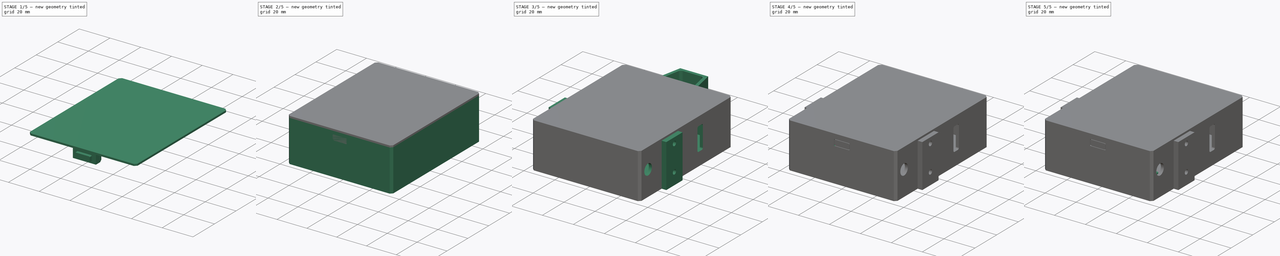
[diagram: build sequence overview — one tinted view per stage of 5, left to right]
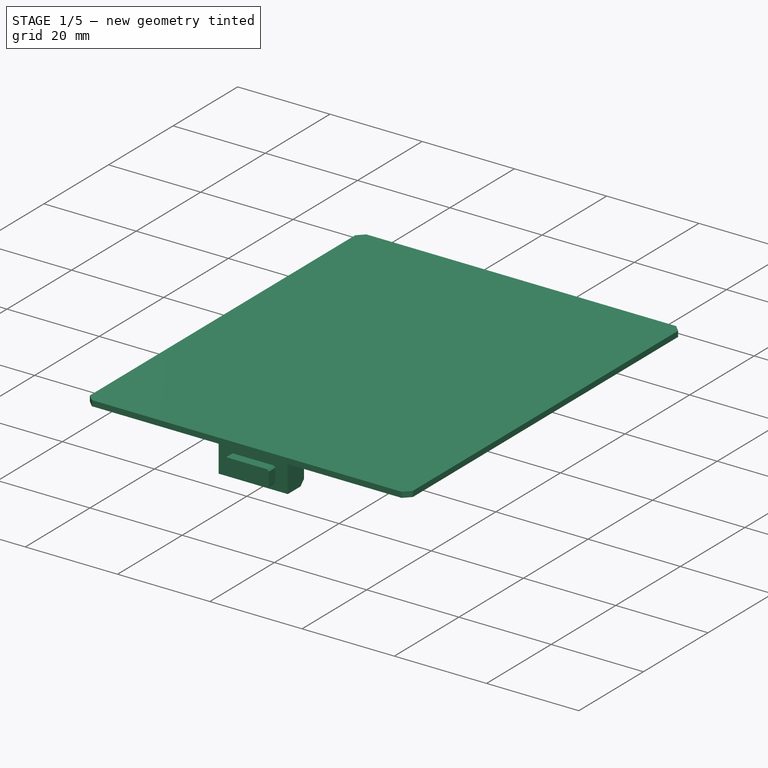
[diagram: stage 1 of 5 — iso view after this stage's code; geometry added in this stage tinted green]
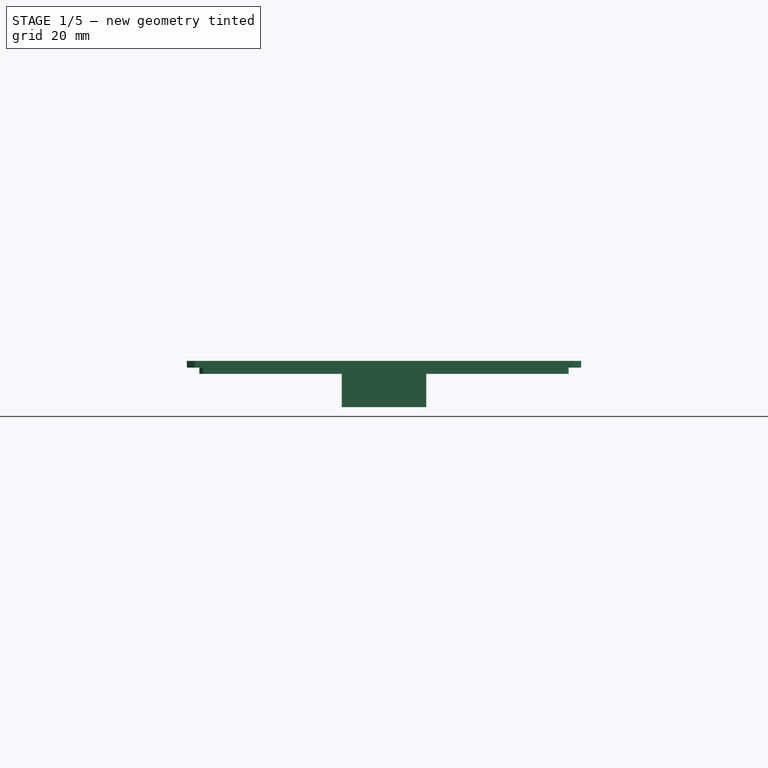
[diagram: stage 1 of 5 — front view after this stage's code; geometry added in this stage tinted green]
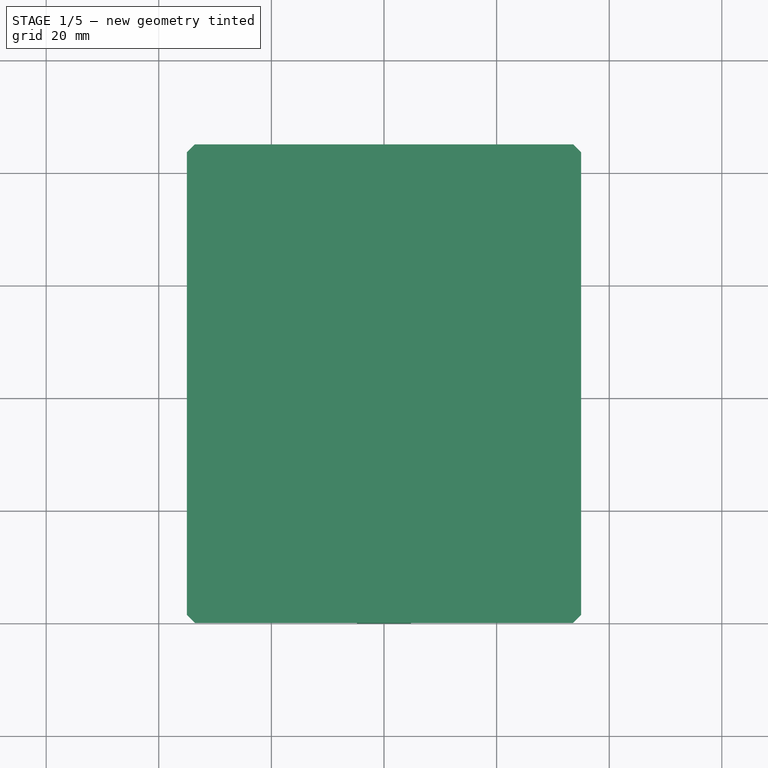
[diagram: stage 1 of 5 — top view after this stage's code; geometry added in this stage tinted green]
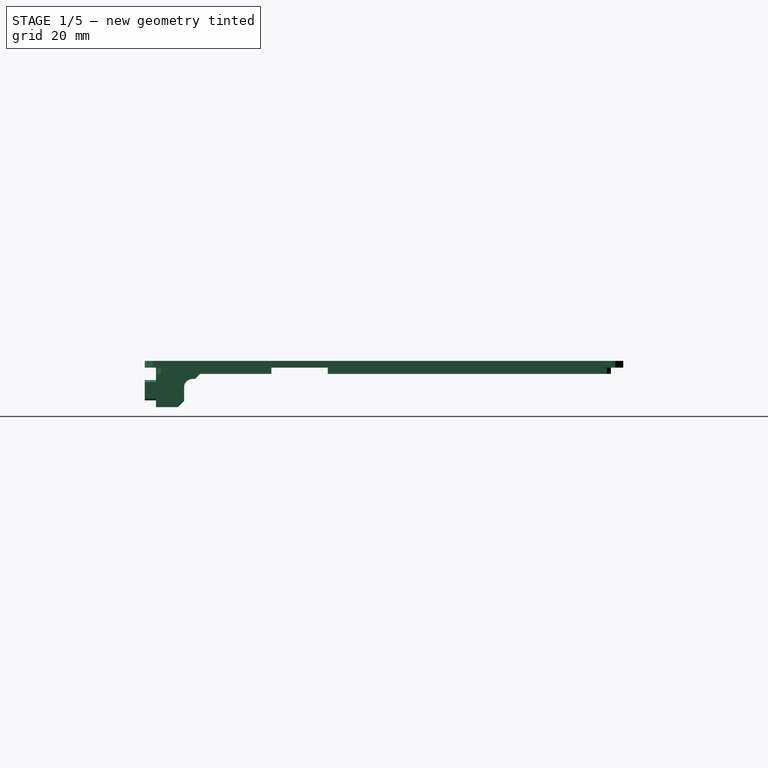
[diagram: stage 1 of 5 — right view after this stage's code; geometry added in this stage tinted green]
FCSTD DOCUMENT  (FreeCAD 1.0R39285 (Git))
Label: rover2
License: All rights reserved
LicenseURL: https://en.wikipedia.org/wiki/All_rights_reserved
objects: PartDesign::ShapeBinder×31, Sketcher::SketchObject×24, PartDesign::Pocket×13, PartDesign::Pad×11, PartDesign::Plane×6, PartDesign::Body×6, PartDesign::Point×4, Part::Extrusion×1, PartDesign::Fillet×1
note: 171 computed .brp shape members not serialized (recipe doc carries the construction recipe); baked Part::Feature solids carry a one-line shape summary decoded from their .brp

FEATURE [PartDesign::ShapeBinder] ShapeBinder013
  Placement = pos=(0,0,28) rot=(0,0,1;0rad)
  Support = -> [DatumPlane003]
  TraceSupport = false
FEATURE [PartDesign::ShapeBinder] ShapeBinder014
  Support = -> [Sketch001]
  TraceSupport = false
FEATURE [Sketcher::SketchObject] Sketch011  label="top_plate_outer"
  ArcFitTolerance = 1e-06
  AttachmentSupport = -> [ShapeBinder013]
  ExternalGeometry = -> [ShapeBinder014]
  FullyConstrained = true
  MakeInternals = false
  MapMode = 5
  Placement = pos=(0,0,28) rot=(0,0,1;0rad)
  sketch-geometry (16):
    g0: LineSegment StartX=-35 StartY=83.5858 StartZ=0 EndX=-35 EndY=1.41421 EndZ=0
    g1: LineSegment StartX=-33.5858 StartY=1.5862e-12 StartZ=0 EndX=33.5858 EndY=1.5862e-12 EndZ=0
    g2: LineSegment StartX=35 StartY=1.41421 StartZ=0 EndX=35 EndY=83.5858 EndZ=0
    g3: LineSegment StartX=33.5858 StartY=85 StartZ=0 EndX=-33.5858 EndY=85 EndZ=0
    g4: ArcOfCircle [constr] CenterX=-33.5858 CenterY=83.5858 CenterZ=0 NormalX=0 NormalY=0 NormalZ=1 AngleXU=0 Radius=1.41421 StartAngle=1.5708 EndAngle=3.14159
    g5: GeomPoint [constr] X=-35 Y=85 Z=0
    g6: LineSegment StartX=-33.5858 StartY=85 StartZ=0 EndX=-35 EndY=83.5858 EndZ=0
    g7: ArcOfCircle [constr] CenterX=33.5858 CenterY=83.5858 CenterZ=0 NormalX=0 NormalY=0 NormalZ=1 AngleXU=0 Radius=1.41421 StartAngle=-1.05675e-11 EndAngle=1.5708
    g8: GeomPoint [constr] X=35 Y=85 Z=0
    g9: LineSegment StartX=35 StartY=83.5858 StartZ=0 EndX=33.5858 EndY=85 EndZ=0
    g10: ArcOfCircle [constr] CenterX=-33.5858 CenterY=1.41421 CenterZ=0 NormalX=0 NormalY=0 NormalZ=1 AngleXU=0 Radius=1.41421 StartAngle=3.14159 EndAngle=4.71239
    g11: GeomPoint [constr] X=-35 Y=1.5664e-12 Z=0
    g12: LineSegment StartX=-35 StartY=1.41421 StartZ=0 EndX=-33.5858 EndY=1.5861e-12 EndZ=0
    g13: ArcOfCircle [constr] CenterX=33.5858 CenterY=1.41421 CenterZ=0 NormalX=0 NormalY=0 NormalZ=1 AngleXU=0 Radius=1.41421 StartAngle=4.71239 EndAngle=6.28319
    g14: GeomPoint [constr] X=35 Y=7.884e-13 Z=0
    g15: LineSegment StartX=33.5858 StartY=1.5862e-12 StartZ=0 EndX=35 EndY=1.41421 EndZ=0
  constraints (36):
    c: Vertical(g0)
    c: Vertical(g2)
    c: Horizontal(g1)
    c: Horizontal(g3)
    c: PointOnObject(g5,g-3)
    c: PointOnObject(g11,g-4)
    c: PointOnObject(g14,g-6)
    c: PointOnObject(g8,g-5)
    c: PointOnObject(g5,g3)
    c: PointOnObject(g5,g0)
    c: Tangent(g3,g4) = -1.5708
    c: Tangent(g0,g4) = -1.5708
    c: Coincident(g6,g3)
    c: Coincident(g6,g0)
    c: PointOnObject(g8,g3)
    c: PointOnObject(g8,g2)
    c: Tangent(g3,g7) = -1.5708
    c: Tangent(g2,g7) = -1.5708
    c: Coincident(g9,g3)
    c: Coincident(g9,g2)
    c: PointOnObject(g11,g1)
    c: PointOnObject(g11,g0)
    c: Tangent(g1,g10) = -1.5708
    c: Tangent(g0,g10) = -1.5708
    c: Coincident(g12,g1)
    c: Coincident(g12,g0)
    c: PointOnObject(g14,g1)
    c: PointOnObject(g14,g2)
    c: Tangent(g1,g13) = -1.5708
    c: Tangent(g2,g13) = -1.5708
    c: Coincident(g15,g1)
    c: Coincident(g15,g2)
    c: PointOnObject(g-4,g6)
    c: PointOnObject(g-5,g9)
    c: PointOnObject(g-4,g12)
    c: PointOnObject(g-5,g15)
FEATURE [PartDesign::ShapeBinder] ShapeBinder015
  Support = -> [Sketch]
  TraceSupport = false
FEATURE [Sketcher::SketchObject] Sketch012  label="top_plate_inner"
  ArcFitTolerance = 1e-06
  AttachmentSupport = -> [ShapeBinder013]
  ExternalGeometry = -> [ShapeBinder015]
  FullyConstrained = true
  MakeInternals = false
  MapMode = 5
  Placement = pos=(0,0,28) rot=(0,0,1;0rad)
  sketch-geometry (34):
    g0: LineSegment StartX=-32.8 StartY=82.0929 StartZ=0 EndX=-32.8 EndY=2.90711 EndZ=0
    g1: LineSegment StartX=-32.0929 StartY=2.2 StartZ=0 EndX=32.0929 EndY=2.2 EndZ=0
    g2: LineSegment StartX=32.8 StartY=2.90711 StartZ=0 EndX=32.8 EndY=82.0929 EndZ=0
    g3: LineSegment StartX=32.0929 StartY=82.8 StartZ=0 EndX=5 EndY=82.8 EndZ=0
    g4: ArcOfCircle [constr] CenterX=-32.0929 CenterY=82.0929 CenterZ=0 NormalX=0 NormalY=0 NormalZ=1 AngleXU=0 Radius=0.707107 StartAngle=1.5708 EndAngle=3.14159
    g5: GeomPoint [constr] X=-32.8 Y=82.8 Z=0
    g6: LineSegment StartX=-32.0929 StartY=82.8 StartZ=0 EndX=-32.8 EndY=82.0929 EndZ=0
    g7: ArcOfCircle [constr] CenterX=32.0929 CenterY=82.0929 CenterZ=0 NormalX=0 NormalY=0 NormalZ=1 AngleXU=0 Radius=0.707107 StartAngle=5e-15 EndAngle=1.5708
    g8: GeomPoint [constr] X=32.8 Y=82.8 Z=0
    g9: LineSegment StartX=32.8 StartY=82.0929 StartZ=0 EndX=32.0929 EndY=82.8 EndZ=0
    g10: ArcOfCircle [constr] CenterX=32.0929 CenterY=2.90711 CenterZ=0 NormalX=0 NormalY=0 NormalZ=1 AngleXU=0 Radius=0.707107 StartAngle=4.71239 EndAngle=6.28319
    g11: GeomPoint [constr] X=32.8 Y=2.2 Z=0
    g12: LineSegment StartX=32.0929 StartY=2.2 StartZ=0 EndX=32.8 EndY=2.90711 EndZ=0
    g13: ArcOfCircle [constr] CenterX=-32.0929 CenterY=2.90711 CenterZ=0 NormalX=0 NormalY=0 NormalZ=1 AngleXU=0 Radius=0.707107 StartAngle=3.14159 EndAngle=4.71239
    g14: GeomPoint [constr] X=-32.8 Y=2.2 Z=0
    g15: LineSegment StartX=-32.8 StartY=2.90711 StartZ=0 EndX=-32.0929 EndY=2.2 EndZ=0
    g16: LineSegment StartX=-28.8 StartY=76.8 StartZ=0 EndX=-28.8 EndY=8.2 EndZ=0
    g17: LineSegment StartX=-26.8 StartY=6.2 StartZ=0 EndX=26.8 EndY=6.2 EndZ=0
    g18: LineSegment StartX=28.8 StartY=8.2 StartZ=0 EndX=28.8 EndY=76.8 EndZ=0
    g19: LineSegment StartX=26.8 StartY=78.8 StartZ=0 EndX=5 EndY=78.8 EndZ=0
    g20: GeomPoint [constr] X=-28.8 Y=78.8 Z=0
    g21: ArcOfCircle CenterX=26.8 CenterY=76.8 CenterZ=0 NormalX=0 NormalY=0 NormalZ=1 AngleXU=0 Radius=2 StartAngle=-2.7e-15 EndAngle=1.5708
    g22: GeomPoint [constr] X=28.8 Y=78.8 Z=0
    g23: ArcOfCircle CenterX=-26.8 CenterY=8.2 CenterZ=0 NormalX=0 NormalY=0 NormalZ=1 AngleXU=0 Radius=2 StartAngle=3.14159 EndAngle=4.71239
    g24: GeomPoint [constr] X=-28.8 Y=6.2 Z=0
    g25: ArcOfCircle CenterX=26.8 CenterY=8.2 CenterZ=0 NormalX=0 NormalY=0 NormalZ=1 AngleXU=0 Radius=2 StartAngle=4.71239 EndAngle=6.28319
    g26: GeomPoint [constr] X=28.8 Y=6.2 Z=0
    g27: LineSegment StartX=5 StartY=78.8 StartZ=0 EndX=5 EndY=82.8 EndZ=0
    g28: LineSegment StartX=-5 StartY=82.8 StartZ=0 EndX=-5 EndY=78.8 EndZ=0
    g29: GeomPoint [constr] X=0 Y=82.8 Z=0
    g30: LineSegment StartX=-5 StartY=78.8 StartZ=0 EndX=-26.8 EndY=78.8 EndZ=0
    g31: LineSegment StartX=-5 StartY=82.8 StartZ=0 EndX=-32.0929 EndY=82.8 EndZ=0
    g32: ArcOfCircle CenterX=-26.8 CenterY=76.8 CenterZ=0 NormalX=0 NormalY=0 NormalZ=1 AngleXU=0 Radius=2 StartAngle=1.5708 EndAngle=3.14159
    g33: LineSegment [constr] StartX=-32.0929 StartY=82.0929 StartZ=0 EndX=32.0929 EndY=82.0929 EndZ=0
  constraints (83):
    c: Vertical(g0)
    c: Vertical(g2)
    c: Horizontal(g1)
    c: Horizontal(g3)
    c: Distance(g-4,g0) = 0.2
    c: Distance(g-5,g1) = 0.2
    c: Distance(g-6,g2) = 0.2
    c: PointOnObject(g5,g0)
    c: PointOnObject(g5,g31)
    c: Tangent(g0,g4) = -1.5708
    c: Coincident(g31,g4) = -1.5708
    c: Coincident(g6,g0)
    c: Coincident(g6,g31)
    c: PointOnObject(g8,g2)
    c: PointOnObject(g8,g3)
    c: Tangent(g2,g7) = -1.5708
    c: Tangent(g3,g7) = -1.5708
    c: Coincident(g9,g2)
    c: Coincident(g9,g3)
    c: PointOnObject(g11,g1)
    c: PointOnObject(g11,g2)
    c: Tangent(g1,g10) = -1.5708
    c: Tangent(g2,g10) = -1.5708
    c: Coincident(g12,g1)
    c: Coincident(g12,g2)
    c: PointOnObject(g14,g1)
    c: PointOnObject(g14,g0)
    c: Tangent(g1,g13) = -1.5708
    c: Tangent(g0,g13) = -1.5708
    c: Coincident(g15,g1)
    c: Coincident(g15,g0)
    c: Distance(g6,g6) = 1
    c: Distance(g9,g9) = 1
    c: Distance(g12,g12) = 1
    c: Distance(g15,g15) = 1
    c: Vertical(g16)
    c: Vertical(g18)
    c: Horizontal(g17)
    c: Horizontal(g19)
    c: Distance(g3,g19) = 4
    c: Distance(g0,g16) = 4
    c: Distance(g1,g17) = 4
    c: Distance(g2,g18) = 4
    c: PointOnObject(g20,g16)
    c: PointOnObject(g20,g30)
    c: PointOnObject(g22,g19)
    c: PointOnObject(g22,g18)
    c: Tangent(g19,g21) = -1.5708
    c: Tangent(g18,g21) = -1.5708
    c: PointOnObject(g24,g16)
    c: PointOnObject(g24,g17)
    c: Tangent(g16,g23) = -1.5708
    c: Tangent(g17,g23) = -1.5708
    c: PointOnObject(g26,g17)
    c: PointOnObject(g26,g18)
    c: Tangent(g17,g25) = -1.5708
    c: Tangent(g18,g25) = -1.5708
    c: Radius(g21) = 2
    c: Radius(g25) = 2
    c: Radius(g23) = 2
    c: Vertical(g27)
    c: Vertical(g28)
    c: Distance(g28,g27) = 10
    c: Symmetric(g27,g28,g29)
    c: PointOnObject(g29,g-2)
    c: PointOnObject(g28,g30)
    c: PointOnObject(g28,g31)
    c: Distance(g-3,g3) = 0.2
    c: PointOnObject(g31,g28)
    c: PointOnObject(g30,g28)
    c: PointOnObject(g27,g19)
    c: PointOnObject(g19,g27)
    c: Horizontal(g31)
    c: Horizontal(g30)
    c: Distance(g31,g30) = 4
    c: Distance(g-3,g31) = 0.2
    c: Coincident(g27,g3)
    c: Tangent(g16,g32) = -1.5708
    c: Tangent(g30,g32) = -1.5708
    c: Radius(g32) = 2
    c: Coincident(g33,g4)
    c: Coincident(g33,g7)
    c: Horizontal(g33)
FEATURE [PartDesign::ShapeBinder] ShapeBinder016
  Placement = pos=(0,0,28) rot=(0,0,1;0rad)
  Support = -> [Sketch011]
  TraceSupport = false
FEATURE [PartDesign::ShapeBinder] ShapeBinder017
  Placement = pos=(0,0,28) rot=(0,0,1;0rad)
  Support = -> [Sketch012]
  TraceSupport = false
FEATURE [PartDesign::Pad] Pad004
  Direction = (0,0,1)
  Length = 1.2
  Length2 = 10
  Placement = pos=(0,0,28) rot=(0,0,1;0rad)
  Profile = -> ShapeBinder016
  Refine = true
  Suppressed = false
  Type = 0
FEATURE [PartDesign::Pad] Pad005
  BaseFeature = -> Pad004
  Direction = (0,0,1)
  Length = 1.1
  Length2 = 10
  Placement = pos=(0,0,28) rot=(0,0,1;0rad)
  Profile = -> ShapeBinder017
  Refine = true
  Reversed = true
  Suppressed = false
  Type = 0
FEATURE [Sketcher::SketchObject] Sketch014  label="latch_support"
  ArcFitTolerance = 1e-06
  AttachmentSupport = -> [YZ_Plane002]
  ExternalGeometry = -> [ShapeBinder013]
  FullyConstrained = true
  MakeInternals = false
  MapMode = 5
  Placement = pos=(0,0,0) rot=(0.57735,0.57735,0.57735;2.0944rad)
  sketch-geometry (14):
    g0: LineSegment StartX=2 StartY=28 StartZ=0 EndX=10 EndY=28 EndZ=0
    g1: LineSegment StartX=10 StartY=28 StartZ=0 EndX=10 EndY=27.0607 EndZ=0
    g2: LineSegment StartX=8.93934 StartY=26 StartZ=0 EndX=8.5 EndY=26 EndZ=0
    g3: LineSegment StartX=7 StartY=24.5 StartZ=0 EndX=7 EndY=22.0607 EndZ=0
    g4: LineSegment StartX=5.93934 StartY=21 StartZ=0 EndX=2 EndY=21 EndZ=0
    g5: LineSegment StartX=2 StartY=21 StartZ=0 EndX=2 EndY=28 EndZ=0
    g6: ArcOfCircle CenterX=8.5 CenterY=24.5 CenterZ=0 NormalX=0 NormalY=0 NormalZ=1 AngleXU=0 Radius=1.5 StartAngle=1.5708 EndAngle=3.14159
    g7: GeomPoint [constr] X=7 Y=26 Z=0
    g8: ArcOfCircle [constr] CenterX=5.93934 CenterY=22.0607 CenterZ=0 NormalX=0 NormalY=0 NormalZ=1 AngleXU=0 Radius=1.06066 StartAngle=4.71239 EndAngle=6.28319
    g9: GeomPoint [constr] X=7 Y=21 Z=0
    g10: LineSegment StartX=5.93934 StartY=21 StartZ=0 EndX=7 EndY=22.0607 EndZ=0
    g11: ArcOfCircle [constr] CenterX=8.93934 CenterY=27.0607 CenterZ=0 NormalX=0 NormalY=0 NormalZ=1 AngleXU=0 Radius=1.06066 StartAngle=4.71239 EndAngle=6.28319
    g12: GeomPoint [constr] X=10 Y=26 Z=0
    g13: LineSegment StartX=8.93934 StartY=26 StartZ=0 EndX=10 EndY=27.0607 EndZ=0
  constraints (34):
    c: Horizontal(g0)
    c: Coincident(g0,g1)
    c: Vertical(g1)
    c: Horizontal(g2)
    c: Vertical(g3)
    c: Horizontal(g4)
    c: Coincident(g4,g5)
    c: Coincident(g5,g0)
    c: Vertical(g5)
    c: PointOnObject(g0,g-3)
    c: PointOnObject(g-4,g5)
    c: Distance(g0,g2) = 2
    c: Distance(g5,g1) = 8
    c: Distance(g0,g4) = 7
    c: DistanceX(g4,g9) = 5
    c: PointOnObject(g7,g3)
    c: PointOnObject(g7,g2)
    c: Tangent(g3,g6) = -1.5708
    c: Tangent(g2,g6) = -1.5708
    c: Radius(g6) = 1.5
    c: PointOnObject(g9,g4)
    c: PointOnObject(g9,g3)
    c: Tangent(g4,g8) = 1.5708
    c: Tangent(g3,g8) = 1.5708
    c: Coincident(g10,g4)
    c: Coincident(g10,g3)
    c: Distance(g10,g10) = 1.5
    c: PointOnObject(g12,g2)
    c: PointOnObject(g12,g1)
    c: Tangent(g2,g11) = 1.5708
    c: Tangent(g1,g11) = 1.5708
    c: Coincident(g13,g2)
    c: Coincident(g13,g1)
    c: Distance(g13,g13) = 1.5
FEATURE [PartDesign::ShapeBinder] ShapeBinder018
  Placement = pos=(0,0,0) rot=(0.57735,0.57735,0.57735;2.0944rad)
  Support = -> [Sketch014]
  TraceSupport = false
FEATURE [PartDesign::Pad] Pad006
  BaseFeature = -> Pad005
  Direction = (1,0,0)
  Length = 15
  Length2 = 10
  Midplane = true
  Placement = pos=(0,0,28) rot=(0,0,1;0rad)
  Profile = -> ShapeBinder018
  Refine = true
  Suppressed = false
  Type = 0
FEATURE [PartDesign::ShapeBinder] ShapeBinder019
  Placement = pos=(0,0,0) rot=(1,0,0;1.5708rad)
  Support = -> [Sketch008]
  TraceSupport = false
FEATURE [Sketcher::SketchObject] Sketch015  label="slot"
  ArcFitTolerance = 1e-06
  AttachmentSupport = -> [XZ_Plane002]
  ExternalGeometry = -> [ShapeBinder019]
  FullyConstrained = true
  MakeInternals = false
  MapMode = 5
  Placement = pos=(0,0,0) rot=(1,0,0;1.5708rad)
  expr: Constraints[5] = .Constraints.slot_clearance
  expr: Constraints[6] = .Constraints.slot_clearance
  expr: Constraints[7] = .Constraints.slot_clearance
  sketch-geometry (16):
    g0: LineSegment StartX=-4.8 StartY=25.4464 StartZ=0 EndX=-4.8 EndY=22.9071 EndZ=0
    g1: LineSegment StartX=-4.09289 StartY=22.2 StartZ=0 EndX=4.44645 EndY=22.2 EndZ=0
    g2: LineSegment StartX=4.8 StartY=22.5536 StartZ=0 EndX=4.8 EndY=25.4464 EndZ=0
    g3: LineSegment StartX=4.44645 StartY=25.8 StartZ=0 EndX=-4.44645 EndY=25.8 EndZ=0
    g4: ArcOfCircle [constr] CenterX=-4.44645 CenterY=25.4464 CenterZ=0 NormalX=0 NormalY=0 NormalZ=1 AngleXU=0 Radius=0.353553 StartAngle=1.5708 EndAngle=3.14159
    g5: GeomPoint [constr] X=-4.8 Y=25.8 Z=0
    g6: LineSegment StartX=-4.44645 StartY=25.8 StartZ=0 EndX=-4.8 EndY=25.4464 EndZ=0
    g7: ArcOfCircle [constr] CenterX=-4.09289 CenterY=22.9071 CenterZ=0 NormalX=0 NormalY=0 NormalZ=1 AngleXU=0 Radius=0.707107 StartAngle=3.14159 EndAngle=4.71239
    g8: GeomPoint [constr] X=-4.8 Y=22.2 Z=0
    g9: LineSegment StartX=-4.8 StartY=22.9071 StartZ=0 EndX=-4.09289 EndY=22.2 EndZ=0
    g10: ArcOfCircle [constr] CenterX=4.44645 CenterY=25.4464 CenterZ=0 NormalX=0 NormalY=0 NormalZ=1 AngleXU=0 Radius=0.353553 StartAngle=-9e-16 EndAngle=1.5708
    g11: GeomPoint [constr] X=4.8 Y=25.8 Z=0
    g12: LineSegment StartX=4.8 StartY=25.4464 StartZ=0 EndX=4.44645 EndY=25.8 EndZ=0
    g13: ArcOfCircle [constr] CenterX=4.44645 CenterY=22.5536 CenterZ=0 NormalX=0 NormalY=0 NormalZ=1 AngleXU=0 Radius=0.353553 StartAngle=4.71239 EndAngle=6.28319
    g14: GeomPoint [constr] X=4.8 Y=22.2 Z=0
    g15: LineSegment StartX=4.44645 StartY=22.2 StartZ=0 EndX=4.8 EndY=22.5536 EndZ=0
  constraints (36):
    c: Vertical(g0)
    c: Vertical(g2)
    c: Horizontal(g1)
    c: Horizontal(g3)
    c: Distance(g-3,g3) = 0.2  'slot_clearance'
    c: Distance(g14,g-6) = 0.2
    c: Distance(g-5,g1) = 0.2
    c: Distance(g-4,g0) = 0.2
    c: PointOnObject(g5,g0)
    c: PointOnObject(g5,g3)
    c: Tangent(g0,g4) = -1.5708
    c: Tangent(g3,g4) = -1.5708
    c: Coincident(g6,g0)
    c: Coincident(g6,g3)
    c: PointOnObject(g8,g0)
    c: PointOnObject(g8,g1)
    c: Tangent(g0,g7) = -1.5708
    c: Tangent(g1,g7) = -1.5708
    c: Coincident(g9,g0)
    c: Coincident(g9,g1)
    c: PointOnObject(g11,g3)
    c: PointOnObject(g11,g2)
    c: Tangent(g3,g10) = -1.5708
    c: Tangent(g2,g10) = -1.5708
    c: Coincident(g12,g3)
    c: Coincident(g12,g2)
    c: PointOnObject(g14,g1)
    c: PointOnObject(g14,g2)
    c: Tangent(g1,g13) = -1.5708
    c: Tangent(g2,g13) = -1.5708
    c: Coincident(g15,g1)
    c: Coincident(g15,g2)
    c: Distance(g6,g6) = 0.5
    c: Distance(g9,g9) = 1
    c: Distance(g12,g12) = 0.5
    c: Distance(g15,g15) = 0.5
FEATURE [PartDesign::ShapeBinder] ShapeBinder020
  Placement = pos=(0,0,0) rot=(1,0,0;1.5708rad)
  Support = -> [Sketch015]
  TraceSupport = false
FEATURE [PartDesign::Pad] Pad007
  BaseFeature = -> Pad006
  Direction = (0,1,0)
  Length = 5
  Length2 = 10
  Placement = pos=(0,0,28) rot=(0,0,1;0rad)
  Profile = -> ShapeBinder020
  Refine = true
  Suppressed = false
  Type = 0
FEATURE [PartDesign::Body] Body001  label="bottom_shell"
  AllowCompound = false
  Group = -> [ShapeBinder,Pad,ShapeBinder001,Pocket,ShapeBinder002,ShapeBinder003,ShapeBinder004,Pad001,Pad002,Pocket001,ShapeBinder005,Pad003,ShapeBinder007,ShapeBinder008,Pocket002,ShapeBinder009,Pocket003,ShapeBinder010,Pocket004,ShapeBinder011,ShapeBinder012,Pocket005,Pocket006,ShapeBinder021,Pad008,ShapeBinder024,ShapeBinder025,Pocket007,Pocket008,Pocket009]
  Origin = -> Origin001
  Tip = -> Pocket009
FEATURE [Sketcher::SketchObject] Sketch023  label="removal_nuts_clearance"
  ArcFitTolerance = 1e-06
  AttachmentSupport = -> [YZ_Plane002]
  ExternalGeometry = -> [ShapeBinder013]
  FullyConstrained = true
  MakeInternals = false
  MapMode = 5
  Placement = pos=(0,0,0) rot=(0.57735,0.57735,0.57735;2.0944rad)
  sketch-geometry (4):
    g0: LineSegment StartX=22.5 StartY=28 StartZ=0 EndX=22.5 EndY=25 EndZ=0
    g1: LineSegment StartX=22.5 StartY=25 StartZ=0 EndX=32.5 EndY=25 EndZ=0
    g2: LineSegment StartX=32.5 StartY=25 StartZ=0 EndX=32.5 EndY=28 EndZ=0
    g3: LineSegment StartX=32.5 StartY=28 StartZ=0 EndX=22.5 EndY=28 EndZ=0
  constraints (12):
    c: Coincident(g0,g1)
    c: Coincident(g1,g2)
    c: Coincident(g2,g3)
    c: Coincident(g3,g0)
    c: Vertical(g0)
    c: Vertical(g2)
    c: Horizontal(g1)
    c: Horizontal(g3)
    c: PointOnObject(g0,g-3)
    c: Distance(g-3,g1) = 3
    c: Distance(g2,g0) = 10
    c: Distance(g0,g-2) = 22.5
FEATURE [PartDesign::ShapeBinder] ShapeBinder026
  Placement = pos=(0,0,0) rot=(0.57735,0.57735,0.57735;2.0944rad)
  Support = -> [Sketch023]
  TraceSupport = false
FEATURE [PartDesign::Pocket] Pocket010
  BaseFeature = -> Pad007
  Direction = (-1,0,0)
  Length = 100
  Length2 = 5
  Midplane = true
  Placement = pos=(0,0,28) rot=(0,0,1;0rad)
  Profile = -> ShapeBinder026
  Refine = true
  Suppressed = false
  Type = 0
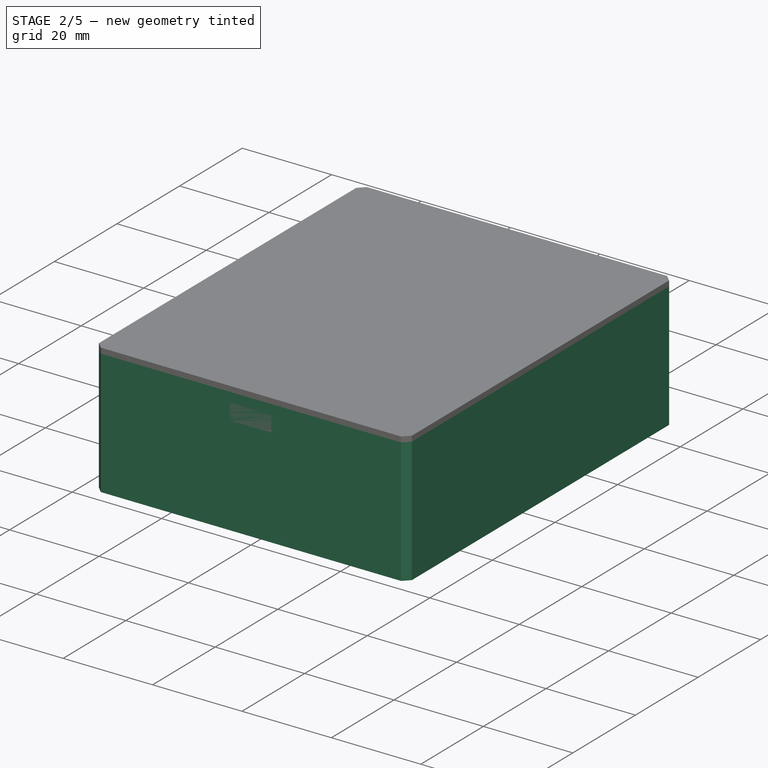
[diagram: stage 2 of 5 — iso view after this stage's code; geometry added in this stage tinted green]
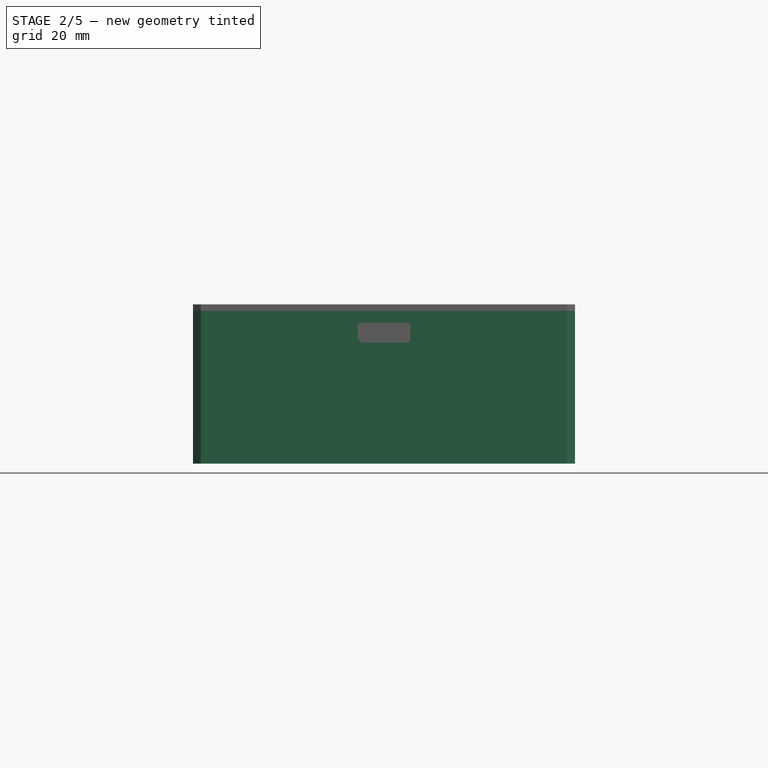
[diagram: stage 2 of 5 — front view after this stage's code; geometry added in this stage tinted green]
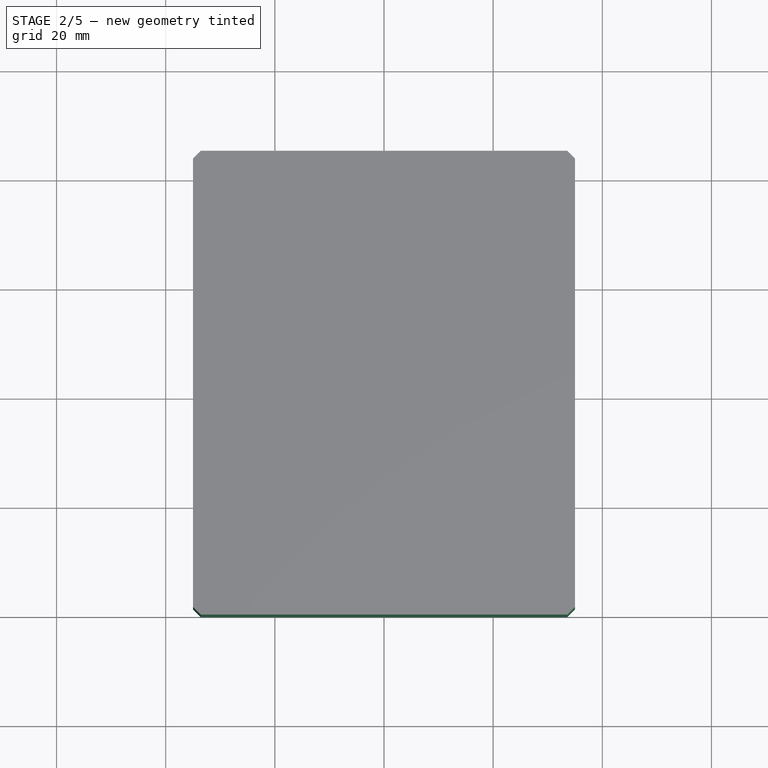
[diagram: stage 2 of 5 — top view after this stage's code; geometry added in this stage tinted green]
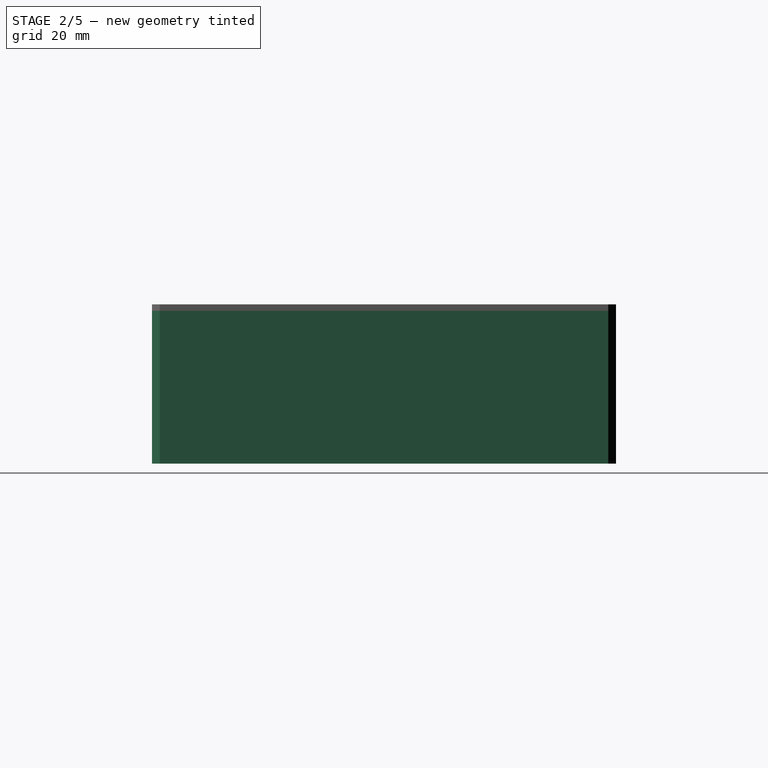
[diagram: stage 2 of 5 — right view after this stage's code; geometry added in this stage tinted green]
FEATURE [PartDesign::Point] DatumPoint  label="left_side_delimiter"
  AttacherType = Attacher::AttachEnginePoint
  AttachmentOffset = pos=(0,0,35) rot=(0,0,1;0rad)
  AttachmentSupport = -> [YZ_Plane]
  MapMode = 32
  Placement = pos=(35,0,0) rot=(0.57735,0.57735,0.57735;2.0944rad)
FEATURE [PartDesign::Point] DatumPoint001  label="right_side_delimiter"
  AttacherType = Attacher::AttachEnginePoint
  AttachmentOffset = pos=(0,0,-35) rot=(0,0,1;0rad)
  AttachmentSupport = -> [YZ_Plane]
  MapMode = 32
  Placement = pos=(-35,0,0) rot=(0.57735,0.57735,0.57735;2.0944rad)
FEATURE [PartDesign::Plane] DatumPlane  label="left_side_delimiter_plane"
  AttachmentSupport = -> [YZ_Plane,DatumPoint]
  Length = 141.279
  MapMode = 53
  Placement = pos=(35,-3.9e-15,3.9e-15) rot=(0.57735,0.57735,0.57735;2.0944rad)
  ResizeMode = 0
  Width = 69.2788
FEATURE [PartDesign::Plane] DatumPlane001  label="right_side_delimiter_plane"
  AttachmentSupport = -> [YZ_Plane,DatumPoint001]
  Length = 141.279
  MapMode = 53
  Placement = pos=(-35,3.9e-15,-3.9e-15) rot=(0.57735,0.57735,0.57735;2.0944rad)
  ResizeMode = 0
  Width = 69.2788
FEATURE [PartDesign::Point] DatumPoint002  label="backside_delimiter"
  AttacherType = Attacher::AttachEnginePoint
  AttachmentOffset = pos=(0,0,-85) rot=(0,0,1;0rad)
  AttachmentSupport = -> [XZ_Plane]
  MapMode = 32
  Placement = pos=(0,85,-1.89e-14) rot=(1,0,0;1.5708rad)
FEATURE [Sketcher::SketchObject] Sketch001  label="bottom_shell_outer"
  ArcFitTolerance = 1e-06
  AttachmentSupport = -> [XY_Plane]
  ExternalGeometry = -> [DatumPlane001,DatumPlane,DatumPoint002]
  FullyConstrained = true
  MakeInternals = false
  MapMode = 5
  sketch-geometry (16):
    g0: LineSegment StartX=-35 StartY=83.5858 StartZ=0 EndX=-35 EndY=1.41421 EndZ=0
    g1: LineSegment StartX=-33.5858 StartY=0 StartZ=0 EndX=33.5858 EndY=0 EndZ=0
    g2: LineSegment StartX=35 StartY=1.41421 StartZ=0 EndX=35 EndY=83.5858 EndZ=0
    g3: LineSegment StartX=33.5858 StartY=85 StartZ=0 EndX=-33.5858 EndY=85 EndZ=0
    g4: ArcOfCircle [constr] CenterX=-33.5858 CenterY=83.5858 CenterZ=0 NormalX=0 NormalY=0 NormalZ=1 AngleXU=0 Radius=1.41421 StartAngle=1.5708 EndAngle=3.14159
    g5: GeomPoint [constr] X=-35 Y=85 Z=0
    g6: LineSegment StartX=-33.5858 StartY=85 StartZ=0 EndX=-35 EndY=83.5858 EndZ=0
    g7: ArcOfCircle [constr] CenterX=33.5858 CenterY=83.5858 CenterZ=0 NormalX=0 NormalY=0 NormalZ=1 AngleXU=0 Radius=1.41421 StartAngle=-1.15e-14 EndAngle=1.5708
    g8: GeomPoint [constr] X=35 Y=85 Z=0
    g9: LineSegment StartX=35 StartY=83.5858 StartZ=0 EndX=33.5858 EndY=85 EndZ=0
    g10: ArcOfCircle [constr] CenterX=33.5858 CenterY=1.41421 CenterZ=0 NormalX=0 NormalY=0 NormalZ=1 AngleXU=0 Radius=1.41421 StartAngle=4.71239 EndAngle=6.28319
    g11: GeomPoint [constr] X=35 Y=0 Z=0
    g12: LineSegment StartX=33.5858 StartY=0 StartZ=0 EndX=35 EndY=1.41421 EndZ=0
    g13: ArcOfCircle [constr] CenterX=-33.5858 CenterY=1.41421 CenterZ=0 NormalX=0 NormalY=0 NormalZ=1 AngleXU=0 Radius=1.41421 StartAngle=3.14159 EndAngle=4.71239
    g14: GeomPoint [constr] X=-35 Y=0 Z=0
    g15: LineSegment StartX=-35 StartY=1.41421 StartZ=0 EndX=-33.5858 EndY=0 EndZ=0
  constraints (36):
    c: Vertical(g0)
    c: Vertical(g2)
    c: Horizontal(g1)
    c: Horizontal(g3)
    c: PointOnObject(g5,g-3)
    c: PointOnObject(g8,g-4)
    c: PointOnObject(g-1,g1)
    c: PointOnObject(g-5,g3)
    c: PointOnObject(g5,g0)
    c: PointOnObject(g5,g3)
    c: Tangent(g0,g4) = -1.5708
    c: Tangent(g3,g4) = -1.5708
    c: Coincident(g6,g0)
    c: Coincident(g6,g3)
    c: PointOnObject(g8,g3)
    c: PointOnObject(g8,g2)
    c: Tangent(g3,g7) = -1.5708
    c: Tangent(g2,g7) = -1.5708
    c: Coincident(g9,g3)
    c: Coincident(g9,g2)
    c: PointOnObject(g11,g2)
    c: PointOnObject(g11,g1)
    c: Tangent(g2,g10) = -1.5708
    c: Tangent(g1,g10) = -1.5708
    c: Coincident(g12,g2)
    c: Coincident(g12,g1)
    c: PointOnObject(g14,g1)
    c: PointOnObject(g14,g0)
    c: Tangent(g1,g13) = -1.5708
    c: Tangent(g0,g13) = -1.5708
    c: Coincident(g15,g1)
    c: Coincident(g15,g0)
    c: Distance(g6,g6) = 2
    c: Distance(g9,g9) = 2
    c: Distance(g15,g15) = 2
    c: Distance(g12,g12) = 2
FEATURE [PartDesign::Plane] DatumPlane002  label="backside_delimiter_plane"
  AttachmentSupport = -> [XZ_Plane,DatumPoint002]
  Length = 82.182
  MapMode = 53
  Placement = pos=(0,85,1.89e-14) rot=(1,0,0;1.5708rad)
  ResizeMode = 0
  Width = 65.182
FEATURE [Sketcher::SketchObject] Sketch  label="bottom_shell_inner"
  ArcFitTolerance = 1e-06
  AttachmentSupport = -> [XY_Plane]
  ExternalGeometry = -> [DatumPlane002,DatumPlane001,DatumPlane]
  FullyConstrained = true
  MakeInternals = false
  MapMode = 5
  sketch-geometry (12):
    g0: LineSegment StartX=-33 StartY=82 StartZ=0 EndX=-33 EndY=3 EndZ=0
    g1: LineSegment StartX=-32 StartY=2 StartZ=0 EndX=32 EndY=2 EndZ=0
    g2: LineSegment StartX=33 StartY=3 StartZ=0 EndX=33 EndY=82 EndZ=0
    g3: LineSegment StartX=32 StartY=83 StartZ=0 EndX=-32 EndY=83 EndZ=0
    g4: ArcOfCircle CenterX=-32 CenterY=82 CenterZ=0 NormalX=0 NormalY=0 NormalZ=1 AngleXU=0 Radius=1 StartAngle=1.5708 EndAngle=3.14159
    g5: GeomPoint [constr] X=-33 Y=83 Z=0
    g6: ArcOfCircle CenterX=-32 CenterY=3 CenterZ=0 NormalX=0 NormalY=0 NormalZ=1 AngleXU=0 Radius=1 StartAngle=3.14159 EndAngle=4.71239
    g7: GeomPoint [constr] X=-33 Y=2 Z=0
    g8: ArcOfCircle CenterX=32 CenterY=3 CenterZ=0 NormalX=0 NormalY=0 NormalZ=1 AngleXU=0 Radius=1 StartAngle=4.71239 EndAngle=6.28319
    g9: GeomPoint [constr] X=33 Y=2 Z=0
    g10: ArcOfCircle CenterX=32 CenterY=82 CenterZ=0 NormalX=0 NormalY=0 NormalZ=1 AngleXU=0 Radius=1 StartAngle=5e-16 EndAngle=1.5708
    g11: GeomPoint [constr] X=33 Y=83 Z=0
  constraints (28):
    c: Vertical(g0)
    c: Vertical(g2)
    c: Horizontal(g1)
    c: Horizontal(g3)
    c: PointOnObject(g5,g3)
    c: PointOnObject(g5,g0)
    c: Tangent(g3,g4) = -1.5708
    c: Tangent(g0,g4) = -1.5708
    c: PointOnObject(g7,g0)
    c: PointOnObject(g7,g1)
    c: Tangent(g0,g6) = -1.5708
    c: Tangent(g1,g6) = -1.5708
    c: PointOnObject(g9,g1)
    c: PointOnObject(g9,g2)
    c: Tangent(g1,g8) = -1.5708
    c: Tangent(g2,g8) = -1.5708
    c: PointOnObject(g11,g3)
    c: PointOnObject(g11,g2)
    c: Tangent(g3,g10) = -1.5708
    c: Tangent(g2,g10) = -1.5708
    c: Radius(g4) = 1
    c: Radius(g6) = 1
    c: Radius(g8) = 1
    c: Radius(g10) = 1
    c: Distance(g-4,g0) = 2
    c: Distance(g-5,g2) = 2
    c: Distance(g1,g-1) = 2
    c: Distance(g-3,g3) = 2
FEATURE [PartDesign::ShapeBinder] ShapeBinder
  Support = -> [Sketch001]
  TraceSupport = false
FEATURE [PartDesign::Pad] Pad
  Direction = (0,0,1)
  Length = 28
  Length2 = 10
  Profile = -> ShapeBinder
  Refine = true
  Suppressed = false
  Type = 0
FEATURE [Sketcher::SketchObject] Sketch024  label="nut_support"
  ArcFitTolerance = 1e-06
  AttachmentSupport = -> [ShapeBinder013]
  FullyConstrained = true
  MakeInternals = false
  MapMode = 5
  Placement = pos=(0,0,28) rot=(0,0,1;0rad)
  sketch-geometry (5):
    g0: LineSegment StartX=-5 StartY=82.8 StartZ=0 EndX=-5 EndY=79.8 EndZ=0
    g1: LineSegment StartX=-5 StartY=79.8 StartZ=0 EndX=5 EndY=79.8 EndZ=0
    g2: LineSegment StartX=5 StartY=79.8 StartZ=0 EndX=5 EndY=82.8 EndZ=0
    g3: LineSegment StartX=5 StartY=82.8 StartZ=0 EndX=-5 EndY=82.8 EndZ=0
    g4: GeomPoint [constr] X=0 Y=79.8 Z=0
  constraints (13):
    c: Coincident(g0,g1)
    c: Coincident(g1,g2)
    c: Coincident(g2,g3)
    c: Coincident(g3,g0)
    c: Vertical(g0)
    c: Vertical(g2)
    c: Horizontal(g1)
    c: Horizontal(g3)
    c: PointOnObject(g0,g-3)
    c: Distance(g3,g1) = 3
    c: Symmetric(g1,g1,g4)
    c: PointOnObject(g4,g-2)
    c: DistanceX(g3,g3) = 10
FEATURE [PartDesign::ShapeBinder] ShapeBinder027
  Placement = pos=(0,0,28) rot=(0,0,1;0rad)
  Support = -> [Sketch024]
  TraceSupport = false
FEATURE [PartDesign::Pad] Pad010
  BaseFeature = -> Pocket010
  Direction = (0,0,1)
  Length = 8
  Length2 = 10
  Placement = pos=(0,0,28) rot=(0,0,1;0rad)
  Profile = -> ShapeBinder027
  Refine = true
  Reversed = true
  Suppressed = false
  Type = 0
FEATURE [PartDesign::ShapeBinder] ShapeBinder028
  Placement = pos=(0,85,1.89e-14) rot=(1,0,0;1.5708rad)
  Support = -> [Sketch009]
  TraceSupport = false
FEATURE [PartDesign::Pocket] Pocket011
  BaseFeature = -> Pad010
  Direction = (0,-1,0)
  Length = 10
  Length2 = 5
  Placement = pos=(0,0,28) rot=(0,0,1;0rad)
  Profile = -> ShapeBinder028
  Refine = true
  Suppressed = false
  Type = 0
FEATURE [PartDesign::ShapeBinder] ShapeBinder029
  Placement = pos=(0,85,1.89e-14) rot=(1,0,0;1.5708rad)
  Support = -> [DatumPlane002]
  TraceSupport = false
FEATURE [PartDesign::Plane] DatumPlane005  label="nut_support_back_plane"
  AttachmentOffset = pos=(0,0,5) rot=(0,0,1;0rad)
  AttachmentSupport = -> [ShapeBinder029]
  Length = 82.182
  MapMode = 5
  Placement = pos=(0,80,2e-14) rot=(1,0,0;1.5708rad)
  ResizeMode = 0
  Width = 65.182
FEATURE [PartDesign::ShapeBinder] ShapeBinder030
  Placement = pos=(0,85,1.89e-14) rot=(1,0,0;1.5708rad)
  Support = -> [Sketch009]
  TraceSupport = false
FEATURE [Sketcher::SketchObject] Sketch025  label="nut_footprint001"
  ArcFitTolerance = 1e-06
  AttachmentSupport = -> [DatumPlane005]
  ExternalGeometry = -> [ShapeBinder030]
  FullyConstrained = true
  MakeInternals = false
  MapMode = 5
  Placement = pos=(0,80,2e-14) rot=(1,0,0;1.5708rad)
  sketch-geometry (10):
    g0: LineSegment StartX=-2.8 StartY=22.3834 StartZ=0 EndX=-2.8 EndY=25.6166 EndZ=0
    g1: LineSegment StartX=-2.8 StartY=25.6166 StartZ=0 EndX=0 EndY=27.2332 EndZ=0
    g2: LineSegment StartX=0 StartY=27.2332 StartZ=0 EndX=2.8 EndY=25.6166 EndZ=0
    g3: LineSegment StartX=2.8 StartY=25.6166 StartZ=0 EndX=2.8 EndY=22.3834 EndZ=0
    g4: LineSegment StartX=2.8 StartY=22.3834 StartZ=0 EndX=0 EndY=20.7668 EndZ=0
    g5: LineSegment StartX=0 StartY=20.7668 StartZ=0 EndX=-2.8 EndY=22.3834 EndZ=0
    g6: LineSegment [constr] StartX=0 StartY=27.2332 StartZ=0 EndX=0 EndY=20.7668 EndZ=0
    g7: LineSegment [constr] StartX=-2.8 StartY=25.6166 StartZ=0 EndX=2.8 EndY=25.6166 EndZ=0
    g8: GeomPoint [constr] X=0 Y=25.6166 Z=0
    g9: GeomPoint [constr] X=0 Y=24 Z=0
  constraints (23):
    c: Vertical(g0)
    c: Coincident(g0,g1)
    c: Coincident(g1,g2)
    c: Coincident(g2,g3)
    c: Coincident(g3,g4)
    c: Coincident(g4,g5)
    c: Coincident(g5,g0)
    c: Vertical(g3)
    c: Coincident(g6,g1)
    c: Coincident(g6,g4)
    c: Vertical(g6)
    c: Coincident(g7,g0)
    c: Coincident(g7,g2)
    c: Horizontal(g7)
    c: Symmetric(g7,g7,g8)
    c: PointOnObject(g8,g6)
    c: DistanceX(g7,g7) = 5.6
    c: Parallel(g1,g4)
    c: Distance(g4,g1) = 5.6
    c: Parallel(g2,g5)
    c: Symmetric(g6,g6,g9)
    c: Equal(g0,g5)
    c: Coincident(g9,g-3)
FEATURE [PartDesign::Body] Body002  label="arr2D_top_plate"
  AllowCompound = false
  Group = -> [ShapeBinder013,Sketch011,ShapeBinder014,ShapeBinder015,Sketch012,Sketch014,ShapeBinder019,Sketch015,Sketch023,Sketch024,ShapeBinder029,DatumPlane005,Sketch025,ShapeBinder030]
  Origin = -> Origin002
FEATURE [PartDesign::ShapeBinder] ShapeBinder031
  Placement = pos=(0,80,2e-14) rot=(1,0,0;1.5708rad)
  Support = -> [Sketch025]
  TraceSupport = false
FEATURE [PartDesign::Pocket] Pocket012
  BaseFeature = -> Pocket011
  Direction = (0,-1,0)
  Length = 2.5
  Length2 = 5
  Midplane = true
  Placement = pos=(0,0,28) rot=(0,0,1;0rad)
  Profile = -> ShapeBinder031
  Refine = true
  Suppressed = false
  Type = 0
FEATURE [PartDesign::Fillet] Fillet
  Base = -> Pocket012 [Edge185,Edge187]
  BaseFeature = -> Pocket012
  Placement = pos=(0,0,28) rot=(0,0,1;0rad)
  Radius = 3
  Refine = true
  SupportTransform = false
  Suppressed = false
  UseAllEdges = false
FEATURE [PartDesign::Body] Body003  label="top_plate"
  AllowCompound = false
  Group = -> [ShapeBinder016,ShapeBinder017,Pad004,Pad005,ShapeBinder018,Pad006,ShapeBinder020,Pad007,ShapeBinder026,Pocket010,ShapeBinder027,Pad010,ShapeBinder028,Pocket011,ShapeBinder031,Pocket012,Fillet]
  Origin = -> Origin003
  Tip = -> Fillet
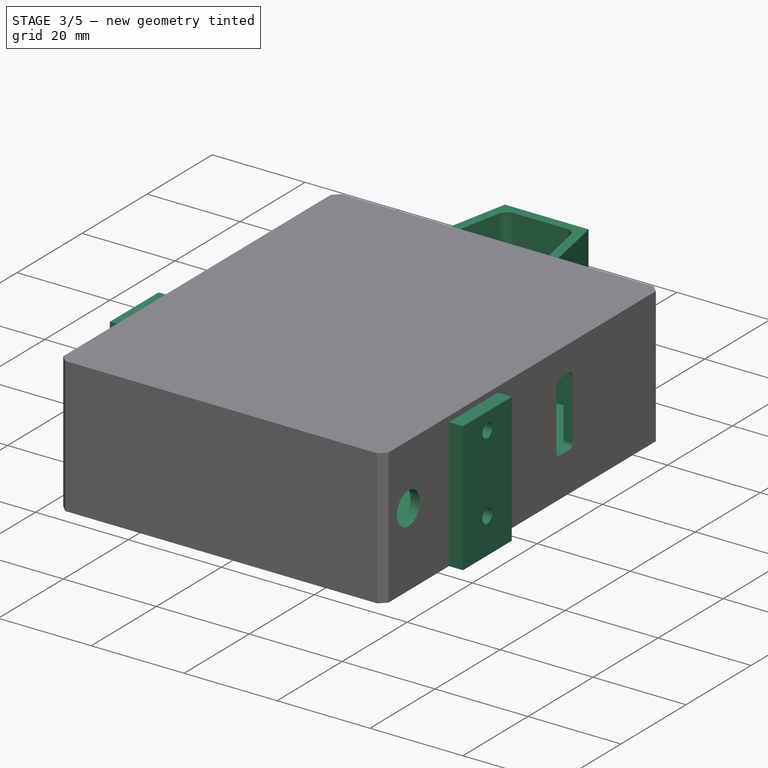
[diagram: stage 3 of 5 — iso view after this stage's code; geometry added in this stage tinted green]
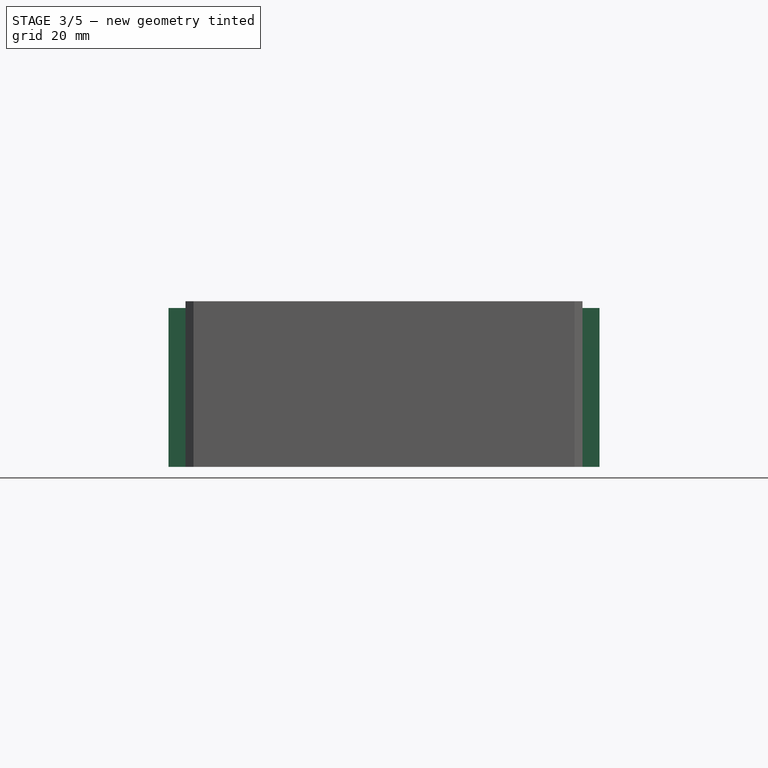
[diagram: stage 3 of 5 — front view after this stage's code; geometry added in this stage tinted green]
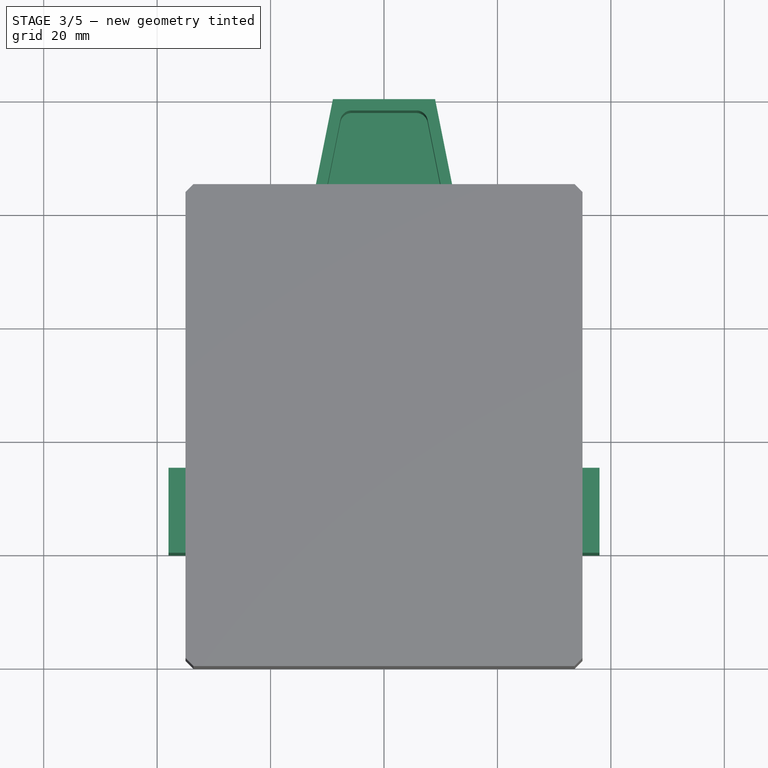
[diagram: stage 3 of 5 — top view after this stage's code; geometry added in this stage tinted green]
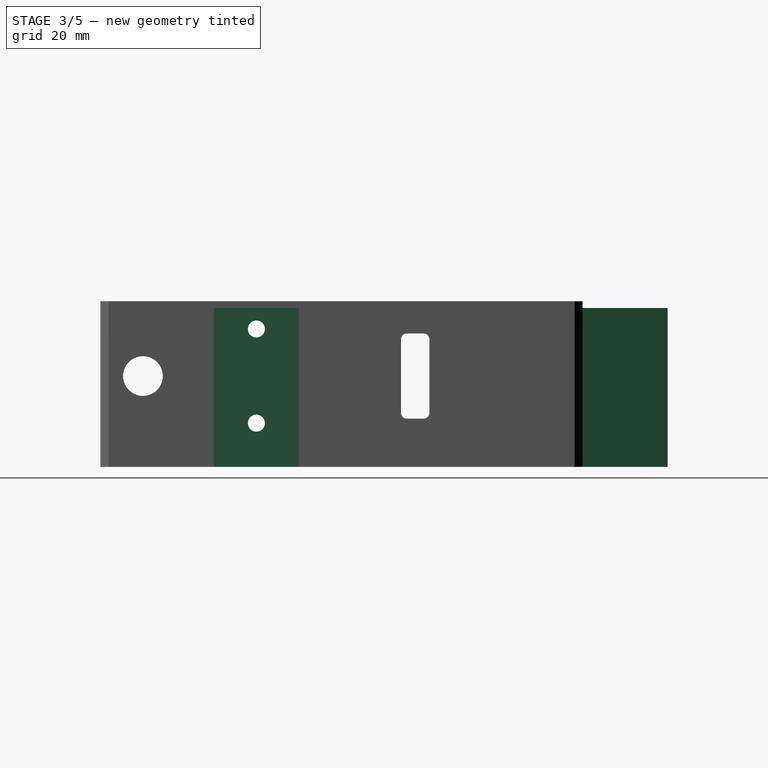
[diagram: stage 3 of 5 — right view after this stage's code; geometry added in this stage tinted green]
FEATURE [PartDesign::ShapeBinder] ShapeBinder001
  Support = -> [Sketch]
  TraceSupport = false
FEATURE [PartDesign::Pocket] Pocket
  BaseFeature = -> Pad
  Direction = (0,0,-1)
  Length = 40
  Length2 = -2
  Profile = -> ShapeBinder001
  Refine = true
  Reversed = true
  Suppressed = false
  Type = 4
FEATURE [PartDesign::Point] DatumPoint003  label="top_delimiter"
  AttacherType = Attacher::AttachEnginePoint
  AttachmentOffset = pos=(0,0,28) rot=(0,0,1;0rad)
  AttachmentSupport = -> [XY_Plane]
  MapMode = 32
  Placement = pos=(0,0,28) rot=(0,0,1;0rad)
FEATURE [PartDesign::Plane] DatumPlane003  label="top_delimiter_plane"
  AttachmentSupport = -> [XY_Plane,DatumPoint003]
  Length = 88.7083
  MapMode = 53
  Placement = pos=(0,0,28) rot=(0,0,1;0rad)
  ResizeMode = 0
  Width = 143.708
FEATURE [Sketcher::SketchObject] Sketch002  label="motor_boss_left"
  ArcFitTolerance = 1e-06
  AttachmentSupport = -> [DatumPlane]
  ExternalGeometry = -> [DatumPlane003]
  FullyConstrained = true
  MakeInternals = false
  MapMode = 5
  Placement = pos=(35,-3.9e-15,3.9e-15) rot=(0.57735,0.57735,0.57735;2.0944rad)
  sketch-geometry (4):
    g0: LineSegment StartX=20 StartY=28 StartZ=0 EndX=20 EndY=0 EndZ=0
    g1: LineSegment StartX=20 StartY=0 StartZ=0 EndX=35 EndY=0 EndZ=0
    g2: LineSegment StartX=35 StartY=0 StartZ=0 EndX=35 EndY=28 EndZ=0
    g3: LineSegment StartX=35 StartY=28 StartZ=0 EndX=20 EndY=28 EndZ=0
  constraints (12):
    c: Coincident(g0,g1)
    c: Coincident(g1,g2)
    c: Coincident(g2,g3)
    c: Coincident(g3,g0)
    c: Vertical(g0)
    c: Vertical(g2)
    c: Horizontal(g1)
    c: Horizontal(g3)
    c: PointOnObject(g0,g-3)
    c: PointOnObject(g0,g-1)
    c: Distance(g2,g0) = 15
    c: Distance(g-2,g0) = 20
FEATURE [Sketcher::SketchObject] Sketch003  label="motor_assembly_holes"
  ArcFitTolerance = 1e-06
  AttachmentSupport = -> [DatumPlane]
  ExternalGeometry = -> [Sketch002]
  FullyConstrained = true
  MakeInternals = false
  MapMode = 5
  Placement = pos=(35,-3.9e-15,3.9e-15) rot=(0.57735,0.57735,0.57735;2.0944rad)
  sketch-geometry (19):
    g0: Circle CenterX=27.5 CenterY=24.3 CenterZ=0 NormalX=0 NormalY=0 NormalZ=1 AngleXU=0 Radius=1.5
    g1: Circle CenterX=27.5 CenterY=7.7 CenterZ=0 NormalX=0 NormalY=0 NormalZ=1 AngleXU=0 Radius=1.5
    g2: Circle CenterX=7.5 CenterY=16 CenterZ=0 NormalX=0 NormalY=0 NormalZ=1 AngleXU=0 Radius=3.5
    g3: LineSegment [constr] StartX=27.5 StartY=24.3 StartZ=0 EndX=27.5 EndY=7.7 EndZ=0
    g4: LineSegment [constr] StartX=27.5 StartY=16 StartZ=0 EndX=0 EndY=16 EndZ=0
    g5: LineSegment StartX=53 StartY=22.5 StartZ=0 EndX=53 EndY=9.5 EndZ=0
    g6: LineSegment StartX=54 StartY=8.5 StartZ=0 EndX=57 EndY=8.5 EndZ=0
    g7: LineSegment StartX=58 StartY=9.5 StartZ=0 EndX=58 EndY=22.5 EndZ=0
    g8: LineSegment StartX=57 StartY=23.5 StartZ=0 EndX=54 EndY=23.5 EndZ=0
    g9: LineSegment [constr] StartX=58 StartY=16 StartZ=0 EndX=53 EndY=16 EndZ=0
    g10: ArcOfCircle CenterX=54 CenterY=22.5 CenterZ=0 NormalX=0 NormalY=0 NormalZ=1 AngleXU=0 Radius=1 StartAngle=1.5708 EndAngle=3.14159
    g11: GeomPoint [constr] X=53 Y=23.5 Z=0
    g12: ArcOfCircle CenterX=57 CenterY=22.5 CenterZ=0 NormalX=0 NormalY=0 NormalZ=1 AngleXU=0 Radius=1 StartAngle=6e-16 EndAngle=1.5708
    g13: GeomPoint [constr] X=58 Y=23.5 Z=0
    g14: ArcOfCircle CenterX=54 CenterY=9.5 CenterZ=0 NormalX=0 NormalY=0 NormalZ=1 AngleXU=0 Radius=1 StartAngle=3.14159 EndAngle=4.71239
    g15: GeomPoint [constr] X=53 Y=8.5 Z=0
    g16: ArcOfCircle CenterX=57 CenterY=9.5 CenterZ=0 NormalX=0 NormalY=0 NormalZ=1 AngleXU=0 Radius=1 StartAngle=4.71239 EndAngle=6.28319
    g17: GeomPoint [constr] X=58 Y=8.5 Z=0
    g18: GeomPoint X=27.5 Y=16 Z=0
  constraints (46):
    c: Coincident(g3,g0)
    c: Coincident(g3,g1)
    c: Parallel(g3,g-2)
    c: Distance(g-4,g-3) = 15  'boss_width'
    c: Distance(g-3,g3) = 7.5
    c: Diameter(g0) = 3
    c: Diameter(g1) = 3
    c: Symmetric(g3,g3,g4)
    c: Horizontal(g4)
    c: PointOnObject(g4,g-2)
    c: PointOnObject(g2,g4)
    c: Diameter(g2) = 7
    c: Distance(g2,g3) = 20
    c: Vertical(g5)
    c: Vertical(g7)
    c: Horizontal(g6)
    c: Horizontal(g8)
    c: Distance(g13,g6) = 15
    c: Distance(g11,g7) = 5
    c: Distance(g-4,g5) = 18
    c: Symmetric(g17,g13,g9)
    c: Symmetric(g11,g15,g9)
    c: PointOnObject(g2,g9)
    c: PointOnObject(g11,g5)
    c: PointOnObject(g11,g8)
    c: Tangent(g5,g10) = -1.5708
    c: Tangent(g8,g10) = -1.5708
    c: PointOnObject(g13,g8)
    c: PointOnObject(g13,g7)
    c: Tangent(g8,g12) = -1.5708
    c: Tangent(g7,g12) = -1.5708
    c: PointOnObject(g15,g5)
    c: PointOnObject(g15,g6)
    c: Tangent(g5,g14) = -1.5708
    c: Tangent(g6,g14) = -1.5708
    c: PointOnObject(g17,g6)
    c: PointOnObject(g17,g7)
    c: Tangent(g6,g16) = -1.5708
    c: Tangent(g7,g16) = -1.5708
    c: Radius(g10) = 1
    c: Radius(g14) = 1
    c: Radius(g16) = 1
    c: Radius(g12) = 1
    c: Symmetric(g3,g3,g18)
    c: Distance(g4,g-1) = 16
    c: DistanceY(g3,g3) = 16.6
FEATURE [Sketcher::SketchObject] Sketch004  label="motor_boss_right"
  ArcFitTolerance = 1e-06
  AttachmentSupport = -> [DatumPlane001]
  ExternalGeometry = -> [Sketch002]
  FullyConstrained = true
  MakeInternals = false
  MapMode = 5
  Placement = pos=(-35,3.9e-15,-3.9e-15) rot=(0.57735,0.57735,0.57735;2.0944rad)
  sketch-geometry (4):
    g0: LineSegment StartX=20 StartY=28 StartZ=0 EndX=20 EndY=7.1e-15 EndZ=0
    g1: LineSegment StartX=20 StartY=7.8e-15 StartZ=0 EndX=35 EndY=7.8e-15 EndZ=0
    g2: LineSegment StartX=35 StartY=7.8e-15 StartZ=0 EndX=35 EndY=28 EndZ=0
    g3: LineSegment StartX=35 StartY=28 StartZ=0 EndX=20 EndY=28 EndZ=0
  constraints (11):
    c: Coincident(g0,g1)
    c: Coincident(g1,g2)
    c: Coincident(g2,g3)
    c: Coincident(g3,g0)
    c: Vertical(g0)
    c: Vertical(g2)
    c: Horizontal(g1)
    c: Horizontal(g3)
    c: Coincident(g2,g-5)
    c: PointOnObject(g-4,g0)
    c: PointOnObject(g0,g-6)
FEATURE [PartDesign::ShapeBinder] ShapeBinder002
  Placement = pos=(-35,3.9e-15,-3.9e-15) rot=(0.57735,0.57735,0.57735;2.0944rad)
  Support = -> [Sketch004]
  TraceSupport = false
FEATURE [PartDesign::ShapeBinder] ShapeBinder003
  Placement = pos=(35,-3.9e-15,3.9e-15) rot=(0.57735,0.57735,0.57735;2.0944rad)
  Support = -> [Sketch002]
  TraceSupport = false
FEATURE [PartDesign::ShapeBinder] ShapeBinder004
  Placement = pos=(35,-3.9e-15,3.9e-15) rot=(0.57735,0.57735,0.57735;2.0944rad)
  Support = -> [Sketch003]
  TraceSupport = false
FEATURE [PartDesign::Pad] Pad001
  BaseFeature = -> Pocket
  Direction = (1,0,0)
  Length = 3
  Length2 = 10
  Profile = -> ShapeBinder002
  Refine = true
  Reversed = true
  Suppressed = false
  Type = 0
FEATURE [PartDesign::Pad] Pad002
  BaseFeature = -> Pad001
  Direction = (1,0,0)
  Length = 3
  Length2 = 10
  Profile = -> ShapeBinder003
  Refine = true
  Suppressed = false
  Type = 0
FEATURE [PartDesign::Pocket] Pocket001
  BaseFeature = -> Pad002
  Direction = (-1,0,0)
  Length = 5
  Length2 = 5
  Midplane = true
  Profile = -> ShapeBinder004
  Refine = true
  Suppressed = false
  Type = 1
FEATURE [Sketcher::SketchObject] Sketch005  label="backwheel_flange_outer"
  ArcFitTolerance = 1e-06
  AttachmentSupport = -> [XY_Plane]
  ExternalGeometry = -> [DatumPlane002]
  FullyConstrained = true
  MakeInternals = false
  MapMode = 5
  sketch-geometry (5):
    g0: LineSegment StartX=-12 StartY=85 StartZ=0 EndX=-9 EndY=100 EndZ=0
    g1: LineSegment StartX=-9 StartY=100 StartZ=0 EndX=9 EndY=100 EndZ=0
    g2: LineSegment StartX=9 StartY=100 StartZ=0 EndX=12 EndY=85 EndZ=0
    g3: LineSegment StartX=12 StartY=85 StartZ=0 EndX=-12 EndY=85 EndZ=0
    g4: LineSegment [constr] StartX=0 StartY=85 StartZ=0 EndX=0 EndY=100 EndZ=0
  constraints (14):
    c: Coincident(g0,g1)
    c: Horizontal(g1)
    c: Coincident(g1,g2)
    c: Coincident(g2,g3)
    c: Coincident(g3,g0)
    c: Horizontal(g3)
    c: PointOnObject(g0,g-3)
    c: Symmetric(g3,g3,g4)
    c: Symmetric(g1,g1,g4)
    c: Vertical(g4)
    c: PointOnObject(g4,g-2)
    c: Distance(g3,g1) = 15
    c: Distance(g1,g1) = 18
    c: Distance(g3,g3) = 24
FEATURE [Sketcher::SketchObject] Sketch006  label="backwheel_flange_lateral_shape"
  ArcFitTolerance = 1e-06
  AttachmentSupport = -> [YZ_Plane]
  ExternalGeometry = -> [DatumPlane002,Sketch005,DatumPlane003]
  FullyConstrained = true
  MakeInternals = false
  MapMode = 5
  Placement = pos=(0,0,0) rot=(0.57735,0.57735,0.57735;2.0944rad)
  sketch-geometry (4):
    g0: LineSegment StartX=85 StartY=28 StartZ=0 EndX=85 EndY=7 EndZ=0
    g1: LineSegment StartX=85 StartY=7 StartZ=0 EndX=100 EndY=4.3551 EndZ=0
    g2: LineSegment StartX=100 StartY=4.3551 StartZ=0 EndX=100 EndY=28 EndZ=0
    g3: LineSegment StartX=100 StartY=28 StartZ=0 EndX=85 EndY=28 EndZ=0
  constraints (12):
    c: Vertical(g0)
    c: Coincident(g0,g1)
    c: Coincident(g1,g2)
    c: Vertical(g2)
    c: Coincident(g2,g3)
    c: Coincident(g3,g0)
    c: Horizontal(g3)
    c: PointOnObject(g0,g-3)
    c: PointOnObject(g-4,g2)
    c: Distance(g0,g-1) = 7
    c: Angle(g1,g-1) = 0.174533
    c: PointOnObject(g2,g-5)
FEATURE [PartDesign::ShapeBinder] ShapeBinder005
  Support = -> [Sketch005]
  TraceSupport = false
FEATURE [PartDesign::ShapeBinder] ShapeBinder007
  Placement = pos=(0,0,28) rot=(0,0,1;0rad)
  Support = -> [DatumPlane003]
  TraceSupport = false
FEATURE [PartDesign::Pad] Pad003
  BaseFeature = -> Pocket001
  Direction = (0,0,1)
  Length = 50
  Length2 = 10
  Profile = -> ShapeBinder005
  Refine = true
  Suppressed = false
  Type = 3
  UpToFace = -> ShapeBinder007 [Face1]
FEATURE [Sketcher::SketchObject] Sketch007  label="backwheel_flange_inner"
  ArcFitTolerance = 1e-06
  AttachmentSupport = -> [XY_Plane]
  ExternalGeometry = -> [DatumPlane002,Sketch005]
  FullyConstrained = true
  MakeInternals = false
  MapMode = 5
  sketch-geometry (8):
    g0: LineSegment StartX=-9.96039 StartY=85 StartZ=0 EndX=-7.68195 EndY=96.3922 EndZ=0
    g1: LineSegment StartX=-5.72078 StartY=98 StartZ=0 EndX=5.72078 EndY=98 EndZ=0
    g2: LineSegment StartX=7.68195 StartY=96.3922 StartZ=0 EndX=9.96039 EndY=85 EndZ=0
    g3: LineSegment StartX=9.96039 StartY=85 StartZ=0 EndX=-9.96039 EndY=85 EndZ=0
    g4: ArcOfCircle CenterX=-5.72078 CenterY=96 CenterZ=0 NormalX=0 NormalY=0 NormalZ=1 AngleXU=0 Radius=2 StartAngle=1.5708 EndAngle=2.9442
    g5: GeomPoint [constr] X=-7.36039 Y=98 Z=0
    g6: ArcOfCircle CenterX=5.72078 CenterY=96 CenterZ=0 NormalX=0 NormalY=0 NormalZ=1 AngleXU=0 Radius=2 StartAngle=0.197396 EndAngle=1.5708
    g7: GeomPoint [constr] X=7.36039 Y=98 Z=0
  constraints (20):
    c: Horizontal(g1)
    c: Coincident(g2,g3)
    c: Coincident(g3,g0)
    c: PointOnObject(g0,g-3)
    c: PointOnObject(g2,g-3)
    c: Parallel(g0,g-4)
    c: Parallel(g2,g-5)
    c: PointOnObject(g5,g0)
    c: PointOnObject(g5,g1)
    c: Tangent(g0,g4) = 1.5708
    c: Tangent(g1,g4) = 1.5708
    c: PointOnObject(g7,g1)
    c: PointOnObject(g7,g2)
    c: Tangent(g1,g6) = 1.5708
    c: Tangent(g2,g6) = 1.5708
    c: Radius(g4) = 2
    c: Radius(g6) = 2
    c: Distance(g-4,g0) = 2
    c: Distance(g-5,g2) = 2
    c: Distance(g1,g-6) = 2
FEATURE [PartDesign::ShapeBinder] ShapeBinder008
  Support = -> [Sketch007]
  TraceSupport = false
FEATURE [PartDesign::Pocket] Pocket002
  BaseFeature = -> Pad003
  Direction = (0,0,-1)
  Length = 50
  Length2 = -2
  Profile = -> ShapeBinder008
  Refine = true
  Reversed = true
  Suppressed = false
  Type = 4
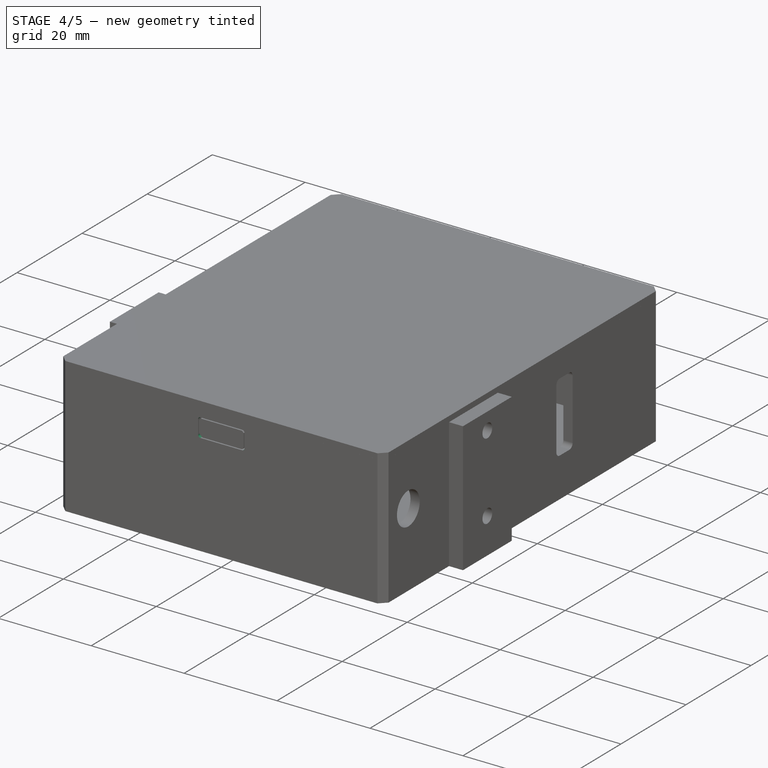
[diagram: stage 4 of 5 — iso view after this stage's code; geometry added in this stage tinted green]
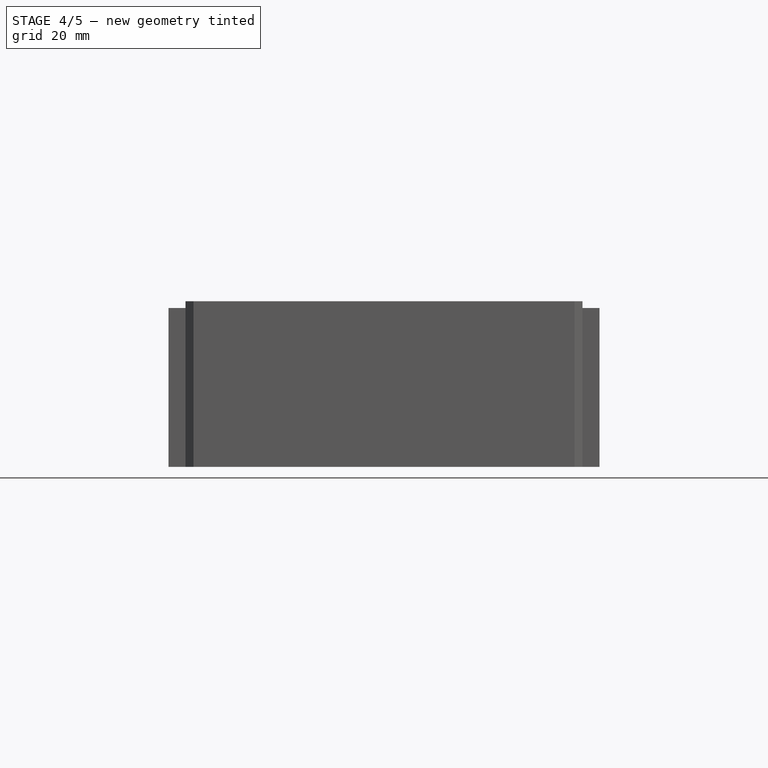
[diagram: stage 4 of 5 — front view after this stage's code; geometry added in this stage tinted green]
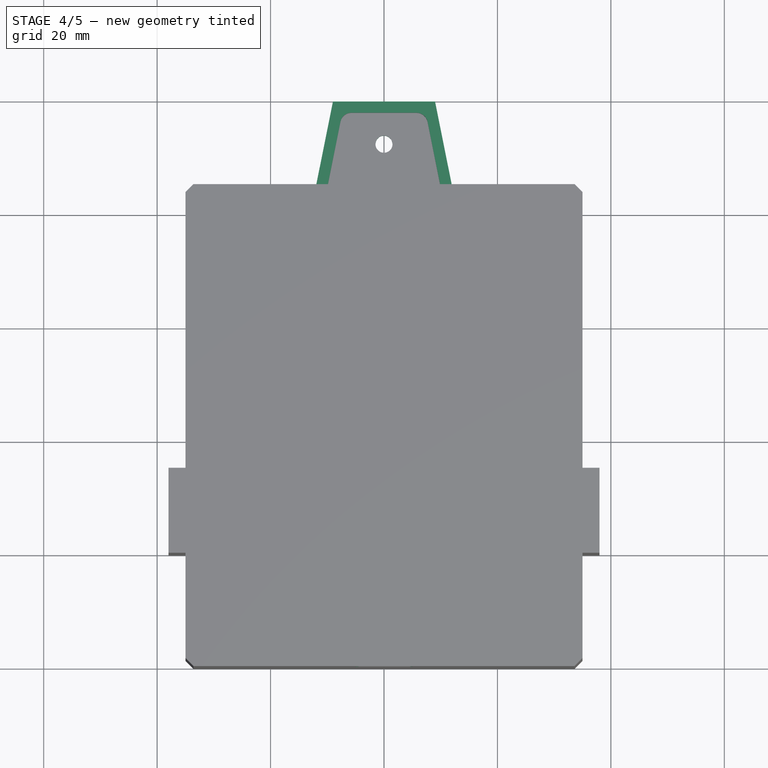
[diagram: stage 4 of 5 — top view after this stage's code; geometry added in this stage tinted green]
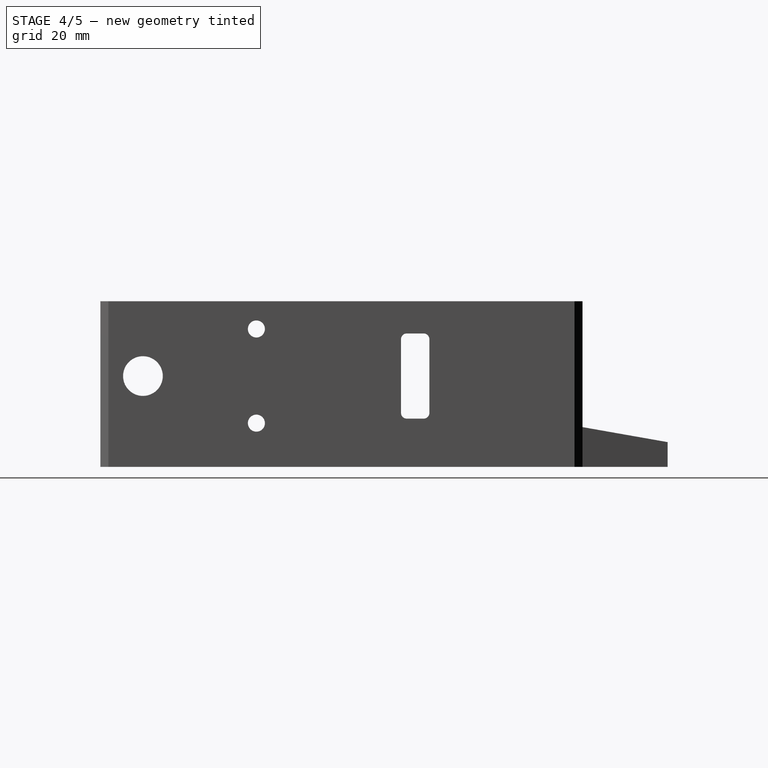
[diagram: stage 4 of 5 — right view after this stage's code; geometry added in this stage tinted green]
FEATURE [PartDesign::ShapeBinder] ShapeBinder009
  Placement = pos=(0,0,0) rot=(0.57735,0.57735,0.57735;2.0944rad)
  Support = -> [Sketch006]
  TraceSupport = false
FEATURE [PartDesign::Pocket] Pocket003
  BaseFeature = -> Pocket002
  Direction = (-1,0,0)
  Length = 50
  Length2 = 5
  Midplane = true
  Profile = -> ShapeBinder009
  Refine = true
  Suppressed = false
  Type = 0
FEATURE [Sketcher::SketchObject] Sketch008  label="cover_slot"
  ArcFitTolerance = 1e-06
  AttachmentSupport = -> [XZ_Plane]
  ExternalGeometry = -> [DatumPoint003]
  FullyConstrained = true
  MakeInternals = false
  MapMode = 5
  Placement = pos=(0,0,0) rot=(1,0,0;1.5708rad)
  sketch-geometry (13):
    g0: LineSegment StartX=-5 StartY=25.5 StartZ=0 EndX=-5 EndY=22.5 EndZ=0
    g1: LineSegment StartX=-4.5 StartY=22 StartZ=0 EndX=4.5 EndY=22 EndZ=0
    g2: LineSegment StartX=5 StartY=22.5 StartZ=0 EndX=5 EndY=25.5 EndZ=0
    g3: LineSegment StartX=4.5 StartY=26 StartZ=0 EndX=-4.5 EndY=26 EndZ=0
    g4: LineSegment [constr] StartX=0 StartY=26 StartZ=0 EndX=1e-16 EndY=22 EndZ=0
    g5: ArcOfCircle CenterX=-4.5 CenterY=25.5 CenterZ=0 NormalX=0 NormalY=0 NormalZ=1 AngleXU=0 Radius=0.5 StartAngle=1.5708 EndAngle=3.14159
    g6: GeomPoint [constr] X=-5 Y=26 Z=0
    g7: ArcOfCircle CenterX=4.5 CenterY=25.5 CenterZ=0 NormalX=0 NormalY=0 NormalZ=1 AngleXU=0 Radius=0.5 StartAngle=-3.6e-15 EndAngle=1.5708
    g8: GeomPoint [constr] X=5 Y=26 Z=0
    g9: ArcOfCircle CenterX=4.5 CenterY=22.5 CenterZ=0 NormalX=0 NormalY=0 NormalZ=1 AngleXU=0 Radius=0.5 StartAngle=4.71239 EndAngle=6.28319
    g10: GeomPoint [constr] X=5 Y=22 Z=0
    g11: ArcOfCircle CenterX=-4.5 CenterY=22.5 CenterZ=0 NormalX=0 NormalY=0 NormalZ=1 AngleXU=0 Radius=0.5 StartAngle=3.14159 EndAngle=4.71239
    g12: GeomPoint [constr] X=-5 Y=22 Z=0
  constraints (30):
    c: Vertical(g0)
    c: Vertical(g2)
    c: Horizontal(g1)
    c: Horizontal(g3)
    c: Symmetric(g8,g6,g4)
    c: Symmetric(g12,g10,g4)
    c: PointOnObject(g4,g-2)
    c: Distance(g10,g0) = 10
    c: Distance(g12,g3) = 4
    c: Distance(g-3,g3) = 2
    c: PointOnObject(g6,g3)
    c: PointOnObject(g6,g0)
    c: Tangent(g3,g5) = -1.5708
    c: Tangent(g0,g5) = -1.5708
    c: PointOnObject(g8,g3)
    c: PointOnObject(g8,g2)
    c: Tangent(g3,g7) = -1.5708
    c: Tangent(g2,g7) = -1.5708
    c: PointOnObject(g10,g2)
    c: PointOnObject(g10,g1)
    c: Tangent(g2,g9) = -1.5708
    c: Tangent(g1,g9) = -1.5708
    c: PointOnObject(g12,g1)
    c: PointOnObject(g12,g0)
    c: Tangent(g1,g11) = -1.5708
    c: Tangent(g0,g11) = -1.5708
    c: Radius(g11) = 0.5
    c: Radius(g5) = 0.5
    c: Radius(g7) = 0.5
    c: Radius(g9) = 0.5
FEATURE [Sketcher::SketchObject] Sketch009  label="top_plate_fixing_holes"
  ArcFitTolerance = 1e-06
  AttachmentSupport = -> [DatumPlane002]
  ExternalGeometry = -> [DatumPoint003]
  FullyConstrained = true
  MakeInternals = false
  MapMode = 5
  Placement = pos=(0,85,1.89e-14) rot=(1,0,0;1.5708rad)
  sketch-geometry (1):
    g0: Circle CenterX=0 CenterY=24 CenterZ=0 NormalX=0 NormalY=0 NormalZ=1 AngleXU=0 Radius=1.6
  constraints (3):
    c: Diameter(g0) = 3.2
    c: PointOnObject(g0,g-2)
    c: Distance(g0,g-1) = 24
FEATURE [Sketcher::SketchObject] Sketch010  label="pcb_mounting_holes"
  ArcFitTolerance = 1e-06
  AttachmentSupport = -> [XY_Plane]
  ExternalGeometry = -> [Sketch007,Sketch]
  FullyConstrained = true
  MakeInternals = false
  MapMode = 5
  expr: Constraints[13] = .Constraints.hole_diam
  expr: Constraints[14] = .Constraints.hole_diam
  expr: Constraints[15] = .Constraints.hole_diam
  sketch-geometry (11):
    g0: LineSegment [constr] StartX=-8 StartY=70 StartZ=0 EndX=-8 EndY=14 EndZ=0
    g1: LineSegment [constr] StartX=-8 StartY=14 StartZ=0 EndX=28 EndY=14 EndZ=0
    g2: LineSegment [constr] StartX=28 StartY=14 StartZ=0 EndX=28 EndY=70 EndZ=0
    g3: LineSegment [constr] StartX=28 StartY=70 StartZ=0 EndX=-8 EndY=70 EndZ=0
    g4: Circle CenterX=-8 CenterY=70 CenterZ=0 NormalX=0 NormalY=0 NormalZ=1 AngleXU=0 Radius=1
    g5: Circle CenterX=28 CenterY=70 CenterZ=0 NormalX=0 NormalY=0 NormalZ=1 AngleXU=0 Radius=1
    g6: Circle CenterX=-8 CenterY=14 CenterZ=0 NormalX=0 NormalY=0 NormalZ=1 AngleXU=0 Radius=1
    g7: Circle CenterX=28 CenterY=14 CenterZ=0 NormalX=0 NormalY=0 NormalZ=1 AngleXU=0 Radius=1
    g8: GeomPoint [constr] X=-8 Y=42 Z=0
    g9: GeomPoint [constr] X=28 Y=42 Z=0
    g10: Circle CenterX=0 CenterY=92.5 CenterZ=0 NormalX=0 NormalY=0 NormalZ=1 AngleXU=0 Radius=1.5
  constraints (25):
    c: Coincident(g0,g1)
    c: Coincident(g1,g2)
    c: Coincident(g2,g3)
    c: Coincident(g3,g0)
    c: Vertical(g0)
    c: Vertical(g2)
    c: Horizontal(g1)
    c: Horizontal(g3)
    c: Coincident(g4,g0)
    c: Coincident(g5,g2)
    c: Coincident(g6,g0)
    c: Coincident(g7,g1)
    c: Diameter(g4) = 2  'hole_diam'
    c: Diameter(g5) = 2
    c: Diameter(g6) = 2
    c: Diameter(g7) = 2
    c: Symmetric(g0,g0,g8)
    c: Symmetric(g2,g2,g9)
    c: DistanceY(g0,g0) = 56
    c: Distance(g3,g3) = 36
    c: Distance(g1,g-1) = 14
    c: PointOnObject(g10,g-2)
    c: Diameter(g10) = 3
    c: Distance(g10,g-3) = 5.5
    c: Distance(g-4,g2) = 5
FEATURE [PartDesign::ShapeBinder] ShapeBinder010
  Support = -> [Sketch010]
  TraceSupport = false
FEATURE [PartDesign::Pocket] Pocket004
  BaseFeature = -> Pocket003
  Direction = (0,0,-1)
  Length = 5
  Length2 = 5
  Profile = -> ShapeBinder010
  Refine = true
  Reversed = true
  Suppressed = false
  Type = 1
FEATURE [PartDesign::ShapeBinder] ShapeBinder011
  Placement = pos=(0,85,1.89e-14) rot=(1,0,0;1.5708rad)
  Support = -> [Sketch009]
  TraceSupport = false
FEATURE [PartDesign::ShapeBinder] ShapeBinder012
  Placement = pos=(0,0,0) rot=(1,0,0;1.5708rad)
  Support = -> [Sketch008]
  TraceSupport = false
FEATURE [PartDesign::Pocket] Pocket005
  BaseFeature = -> Pocket004
  Direction = (0,-1,0)
  Length = 5
  Length2 = 5
  Profile = -> ShapeBinder011
  Refine = true
  Suppressed = false
  Type = 2
FEATURE [PartDesign::Pocket] Pocket006
  BaseFeature = -> Pocket005
  Direction = (0,-1,0)
  Length = 5
  Length2 = 5
  Profile = -> ShapeBinder012
  Refine = true
  Reversed = true
  Suppressed = false
  Type = 2
FEATURE [PartDesign::Plane] DatumPlane004  label="rear_wheel_plane"
  AttachmentOffset = pos=(0,0,-16) rot=(0,0,1;0rad)
  AttachmentSupport = -> [DatumPoint002]
  Length = 88.7083
  MapMode = 1
  Placement = pos=(0,85,-16) rot=(0,0,1;0rad)
  ResizeMode = 0
  Width = 143.708
FEATURE [Sketcher::SketchObject] Sketch016
  ArcFitTolerance = 1e-06
  AttachmentSupport = -> [YZ_Plane]
  ExternalGeometry = -> [Sketch003]
  FullyConstrained = false
  MakeInternals = false
  MapMode = 5
  Placement = pos=(0,0,0) rot=(0.57735,0.57735,0.57735;2.0944rad)
  sketch-geometry (2):
    g0: Circle CenterX=7.5 CenterY=16 CenterZ=0 NormalX=0 NormalY=0 NormalZ=1 AngleXU=0 Radius=33.75
    g1: Circle CenterX=86.4618 CenterY=-14.8026 CenterZ=0 NormalX=0 NormalY=0 NormalZ=1 AngleXU=0 Radius=4
  constraints (3):
    c: Diameter(g0) = 67.5
    c: Coincident(g0,g-3)
    c: Diameter(g1) = 8
FEATURE [PartDesign::Body] Body005  label="arr2D_support_pcb_moteurs"
  AllowCompound = false
  Origin = -> Origin005
FEATURE [Sketcher::SketchObject] Sketch018  label="main_pcb_outline"
  ArcFitTolerance = 1e-06
  AttachmentSupport = -> [XY_Plane]
  ExternalGeometry = -> [Sketch010]
  FullyConstrained = true
  MakeInternals = false
  MapMode = 5
  sketch-geometry (4):
    g0: LineSegment StartX=-30 StartY=12 StartZ=0 EndX=30 EndY=12 EndZ=0
    g1: LineSegment StartX=30 StartY=12 StartZ=0 EndX=30 EndY=72 EndZ=0
    g2: LineSegment StartX=30 StartY=72 StartZ=0 EndX=-30 EndY=72 EndZ=0
    g3: LineSegment StartX=-30 StartY=72 StartZ=0 EndX=-30 EndY=12 EndZ=0
  constraints (12):
    c: Coincident(g0,g1)
    c: Coincident(g1,g2)
    c: Coincident(g2,g3)
    c: Coincident(g3,g0)
    c: Horizontal(g0)
    c: Horizontal(g2)
    c: Vertical(g1)
    c: Vertical(g3)
    c: Distance(g1,g3) = 60
    c: Distance(g2,g0) = 60
    c: Distance(g-3,g1) = 2
    c: Distance(g-3,g2) = 2
FEATURE [Sketcher::SketchObject] Sketch017  label="motor_pcb_outline"
  ArcFitTolerance = 1e-06
  AttachmentSupport = -> [XY_Plane]
  ExternalGeometry = -> [Sketch018]
  FullyConstrained = true
  MakeInternals = false
  MapMode = 5
  sketch-geometry (5):
    g0: LineSegment StartX=-30 StartY=52 StartZ=0 EndX=-30 EndY=31 EndZ=0
    g1: LineSegment StartX=-30 StartY=31 StartZ=0 EndX=-5.4 EndY=31 EndZ=0
    g2: LineSegment StartX=-5.4 StartY=31 StartZ=0 EndX=-5.4 EndY=52 EndZ=0
    g3: LineSegment StartX=-5.4 StartY=52 StartZ=0 EndX=-30 EndY=52 EndZ=0
    g4: Circle CenterX=-28 CenterY=44 CenterZ=0 NormalX=0 NormalY=0 NormalZ=1 AngleXU=0 Radius=1.1
  constraints (15):
    c: Coincident(g0,g1)
    c: Coincident(g1,g2)
    c: Coincident(g2,g3)
    c: Coincident(g3,g0)
    c: Vertical(g0)
    c: Vertical(g2)
    c: Horizontal(g1)
    c: Horizontal(g3)
    c: Distance(g3,g1) = 21
    c: Distance(g2,g0) = 24.6
    c: PointOnObject(g0,g-3)
    c: Diameter(g4) = 2.2
    c: Distance(g4,g3) = 8
    c: Distance(g3,g-4) = 20
    c: Distance(g4,g0) = 2
FEATURE [Sketcher::SketchObject] Sketch020  label="motor_pcb_slot"
  ArcFitTolerance = 1e-06
  AttachmentSupport = -> [XY_Plane]
  ExternalGeometry = -> [Sketch017,Sketch]
  FullyConstrained = true
  MakeInternals = false
  MapMode = 5
  sketch-geometry (8):
    g0: LineSegment StartX=-33 StartY=54.2 StartZ=0 EndX=-33 EndY=28.8 EndZ=0
    g1: LineSegment StartX=-33 StartY=28.8 StartZ=0 EndX=-3.2 EndY=28.8 EndZ=0
    g2: LineSegment StartX=-3.2 StartY=28.8 StartZ=0 EndX=-3.2 EndY=54.2 EndZ=0
    g3: LineSegment StartX=-3.2 StartY=54.2 StartZ=0 EndX=-33 EndY=54.2 EndZ=0
    g4: LineSegment StartX=-30.2 StartY=52.2 StartZ=0 EndX=-30.2 EndY=30.8 EndZ=0
    g5: LineSegment StartX=-30.2 StartY=30.8 StartZ=0 EndX=-5.2 EndY=30.8 EndZ=0
    g6: LineSegment StartX=-5.2 StartY=30.8 StartZ=0 EndX=-5.2 EndY=52.2 EndZ=0
    g7: LineSegment StartX=-5.2 StartY=52.2 StartZ=0 EndX=-30.2 EndY=52.2 EndZ=0
  constraints (24):
    c: Coincident(g0,g1)
    c: Coincident(g1,g2)
    c: Coincident(g2,g3)
    c: Coincident(g3,g0)
    c: Vertical(g0)
    c: Vertical(g2)
    c: Horizontal(g1)
    c: Horizontal(g3)
    c: Coincident(g4,g5)
    c: Coincident(g5,g6)
    c: Coincident(g6,g7)
    c: Coincident(g7,g4)
    c: Vertical(g4)
    c: Vertical(g6)
    c: Horizontal(g5)
    c: Horizontal(g7)
    c: Distance(g-3,g4) = 0.2
    c: Distance(g-6,g6) = 0.2
    c: Distance(g-5,g5) = 0.2
    c: Distance(g7,g3) = 2
    c: Distance(g2,g6) = 2
    c: Distance(g1,g5) = 2
    c: PointOnObject(g0,g-7)
    c: Distance(g-4,g7) = 0.2
FEATURE [PartDesign::ShapeBinder] ShapeBinder021
  Support = -> [Sketch020]
  TraceSupport = false
FEATURE [PartDesign::Pad] Pad008
  BaseFeature = -> Pocket006
  Direction = (0,0,1)
  Length = 3
  Length2 = 10
  Profile = -> ShapeBinder021
  Refine = true
  Suppressed = false
  Type = 0
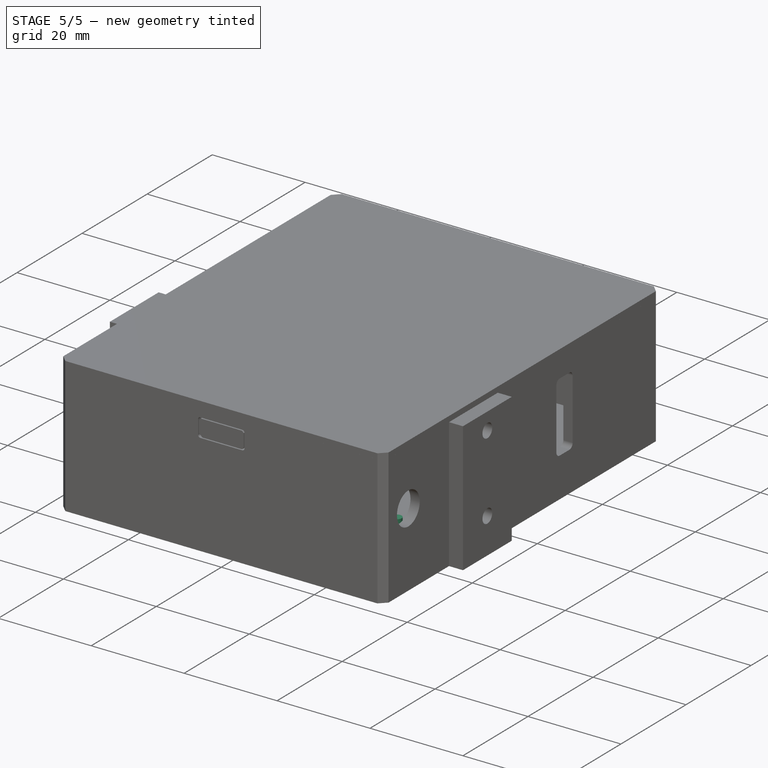
[diagram: stage 5 of 5 — iso view after this stage's code; geometry added in this stage tinted green]
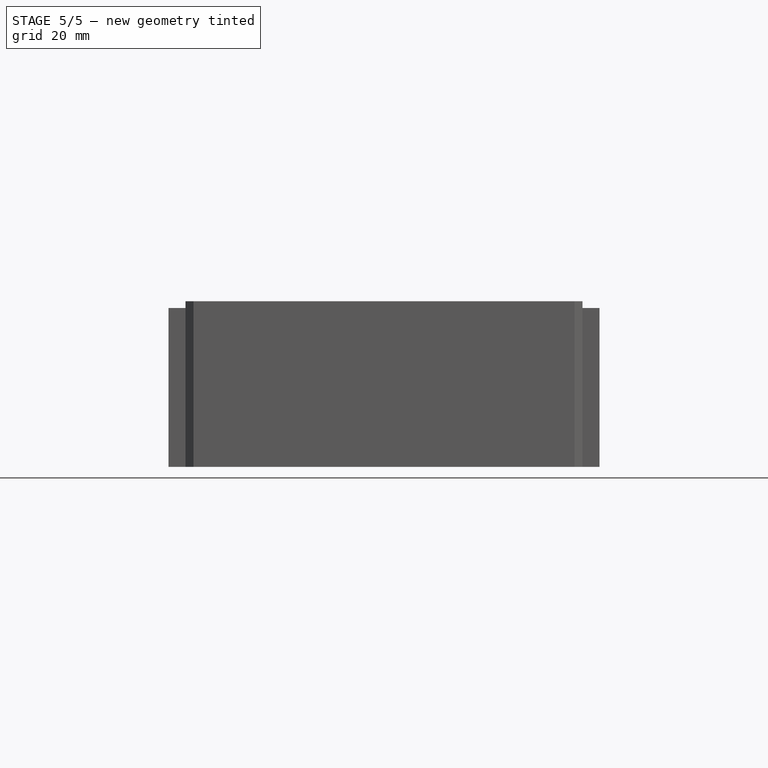
[diagram: stage 5 of 5 — front view after this stage's code; geometry added in this stage tinted green]
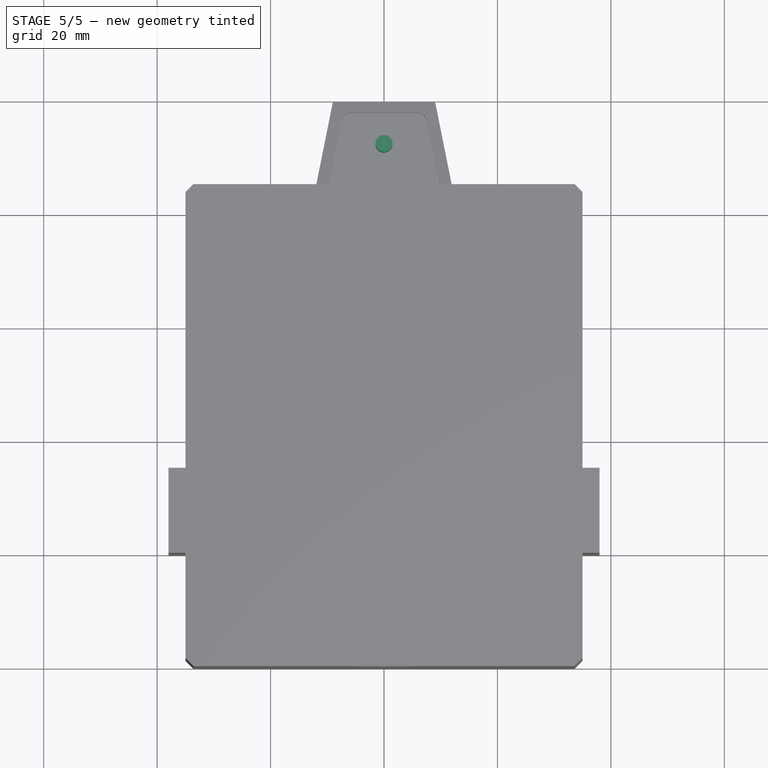
[diagram: stage 5 of 5 — top view after this stage's code; geometry added in this stage tinted green]
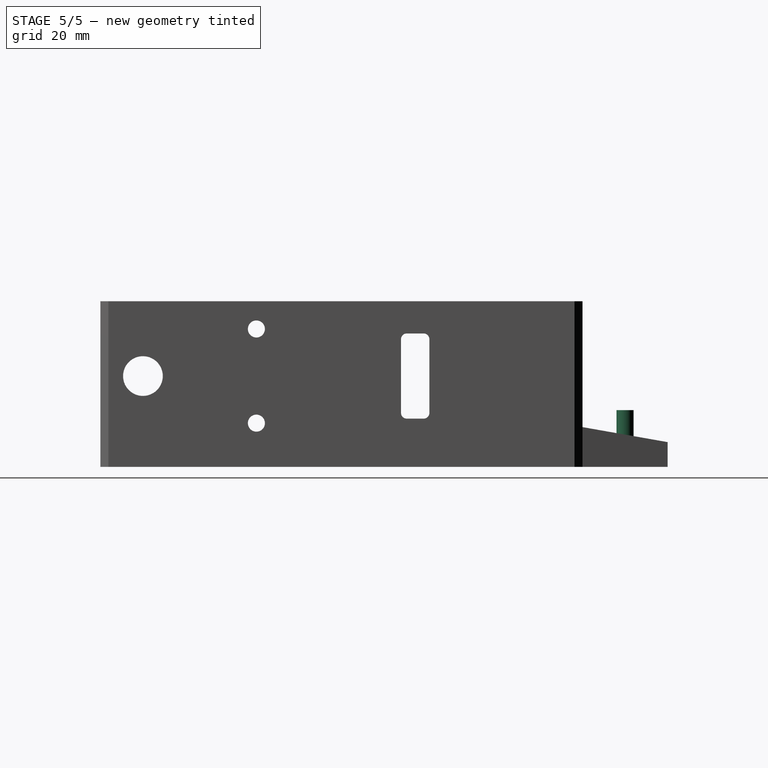
[diagram: stage 5 of 5 — right view after this stage's code; geometry added in this stage tinted green]
FEATURE [PartDesign::ShapeBinder] ShapeBinder022
  Support = -> [Sketch017]
  TraceSupport = false
FEATURE [PartDesign::Pad] Pad009
  Direction = (0,0,1)
  Length = 7
  Length2 = 10
  Profile = -> ShapeBinder022
  Refine = true
  Suppressed = false
  Type = 0
FEATURE [PartDesign::ShapeBinder] ShapeBinder023
  Support = -> [Sketch010]
  TraceSupport = false
FEATURE [PartDesign::Body] Body007  label="boards_volumes"
  AllowCompound = false
  Group = -> [ShapeBinder022,Pad009,ShapeBinder023]
  Origin = -> Origin007
  Tip = -> Pad009
FEATURE [Part::Extrusion] Extrude  label="stands"
  Base = -> ShapeBinder023
  Dir = (0,0,1)
  DirMode = 2
  FaceMakerClass = Part::FaceMakerBullseye
  FaceMakerMode = 3
  LengthFwd = 10
  LengthRev = 0
  Solid = true
  Symmetric = false
FEATURE [Sketcher::SketchObject] Sketch021  label="nut_footprint"
  ArcFitTolerance = 1e-06
  AttachmentSupport = -> [XY_Plane]
  ExternalGeometry = -> [Sketch017]
  FullyConstrained = true
  MakeInternals = false
  MapMode = 5
  sketch-geometry (10):
    g0: LineSegment StartX=-30.05 StartY=42.8164 StartZ=0 EndX=-30.05 EndY=45.1836 EndZ=0
    g1: LineSegment StartX=-30.05 StartY=45.1836 StartZ=0 EndX=-28 EndY=46.3671 EndZ=0
    g2: LineSegment StartX=-28 StartY=46.3671 StartZ=0 EndX=-25.95 EndY=45.1836 EndZ=0
    g3: LineSegment StartX=-25.95 StartY=45.1836 StartZ=0 EndX=-25.95 EndY=42.8164 EndZ=0
    g4: LineSegment StartX=-25.95 StartY=42.8164 StartZ=0 EndX=-28 EndY=41.6329 EndZ=0
    g5: LineSegment StartX=-28 StartY=41.6329 StartZ=0 EndX=-30.05 EndY=42.8164 EndZ=0
    g6: LineSegment [constr] StartX=-28 StartY=46.3671 StartZ=0 EndX=-28 EndY=41.6329 EndZ=0
    g7: LineSegment [constr] StartX=-30.05 StartY=45.1836 StartZ=0 EndX=-25.95 EndY=45.1836 EndZ=0
    g8: GeomPoint [constr] X=-28 Y=45.1836 Z=0
    g9: GeomPoint [constr] X=-28 Y=44 Z=0
  constraints (23):
    c: Vertical(g0)
    c: Coincident(g0,g1)
    c: Coincident(g1,g2)
    c: Coincident(g2,g3)
    c: Coincident(g3,g4)
    c: Coincident(g4,g5)
    c: Coincident(g5,g0)
    c: Vertical(g3)
    c: Coincident(g6,g1)
    c: Coincident(g6,g4)
    c: Vertical(g6)
    c: Coincident(g7,g0)
    c: Coincident(g7,g2)
    c: Horizontal(g7)
    c: Symmetric(g7,g7,g8)
    c: PointOnObject(g8,g6)
    c: DistanceX(g7,g7) = 4.1
    c: Parallel(g1,g4)
    c: Distance(g4,g1) = 4.1
    c: Parallel(g2,g5)
    c: Symmetric(g6,g6,g9)
    c: Equal(g0,g5)
    c: Coincident(g9,g-3)
FEATURE [Sketcher::SketchObject] Sketch022  label="motor_pcb_mounting_hole"
  ArcFitTolerance = 1e-06
  AttachmentSupport = -> [XY_Plane]
  ExternalGeometry = -> [Sketch017]
  FullyConstrained = true
  MakeInternals = false
  MapMode = 5
  sketch-geometry (1):
    g0: Circle CenterX=-28 CenterY=44 CenterZ=0 NormalX=0 NormalY=0 NormalZ=1 AngleXU=0 Radius=1.1
  constraints (2):
    c: Coincident(g0,g-3)
    c: Diameter(g0) = 2.2
FEATURE [PartDesign::Body] Body  label="arr2D_bottom_shell"
  AllowCompound = false
  Group = -> [DatumPoint,DatumPoint001,DatumPlane,DatumPlane001,Sketch001,DatumPoint002,DatumPlane002,Sketch,Sketch002,DatumPoint003,DatumPlane003,Sketch003,Sketch004,Sketch005,Sketch006,Sketch007,Sketch008,Sketch009,Sketch010,DatumPlane004,Sketch016,Sketch017,Sketch018,Sketch020,Sketch021,Sketch022]
  Origin = -> Origin
FEATURE [PartDesign::ShapeBinder] ShapeBinder024
  Support = -> [Sketch021]
  TraceSupport = false
FEATURE [PartDesign::ShapeBinder] ShapeBinder025
  Support = -> [Sketch022]
  TraceSupport = false
FEATURE [PartDesign::Pocket] Pocket007
  BaseFeature = -> Pad008
  Direction = (0,0,-1)
  Length = 1
  Length2 = 5
  Profile = -> ShapeBinder025
  Refine = true
  Suppressed = false
  Type = 0
FEATURE [PartDesign::Pocket] Pocket008
  BaseFeature = -> Pocket007
  Direction = (0,0,-1)
  Length = 1.25
  Length2 = 5
  Profile = -> ShapeBinder024
  Refine = true
  Reversed = true
  Suppressed = false
  Type = 0
FEATURE [PartDesign::Pocket] Pocket009
  BaseFeature = -> Pocket008
  Direction = (0,0,-1)
  Length = 5
  Length2 = 5
  Profile = -> ShapeBinder025
  Refine = true
  Reversed = true
  Suppressed = false
  Type = 1
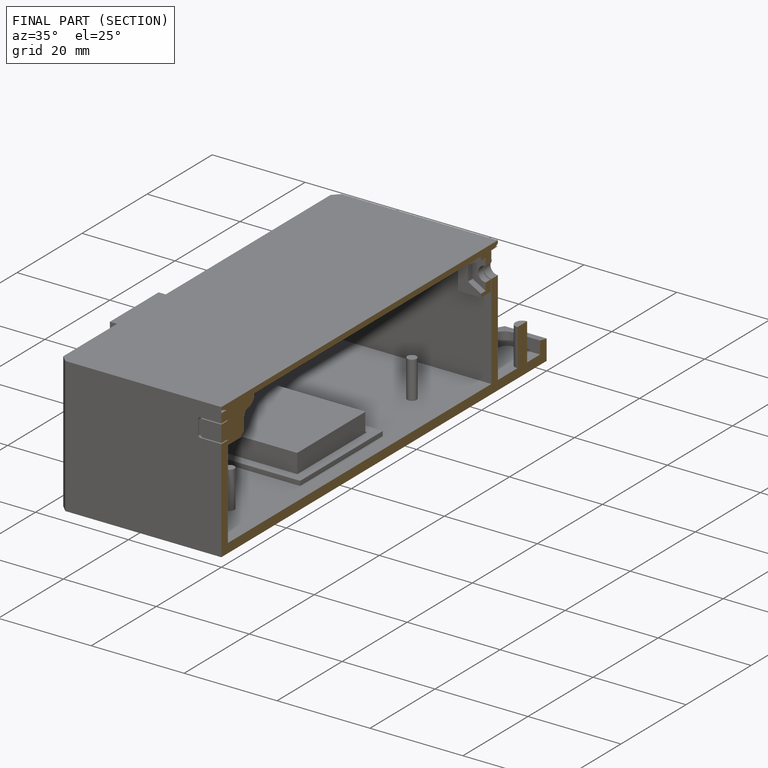
[diagram: finished part — half-section view (interior)]
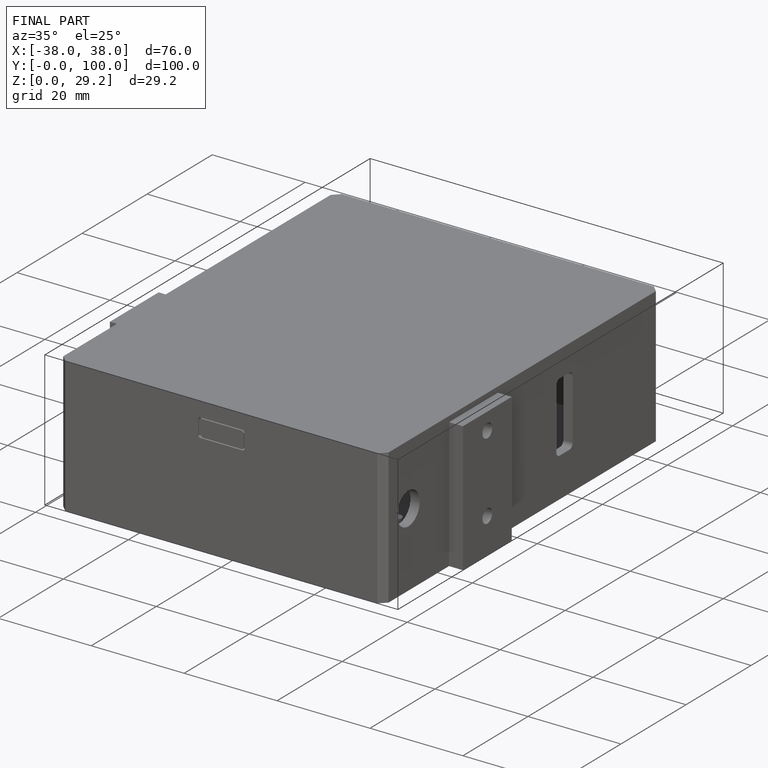
[diagram: finished part — iso view with bounding-box wireframe]
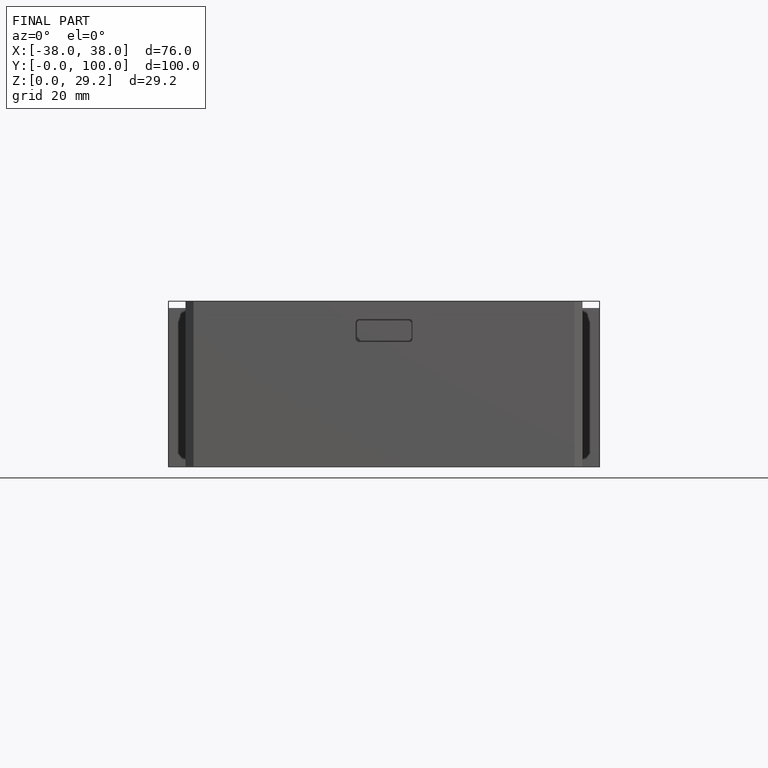
[diagram: finished part — front view with bounding-box wireframe]
